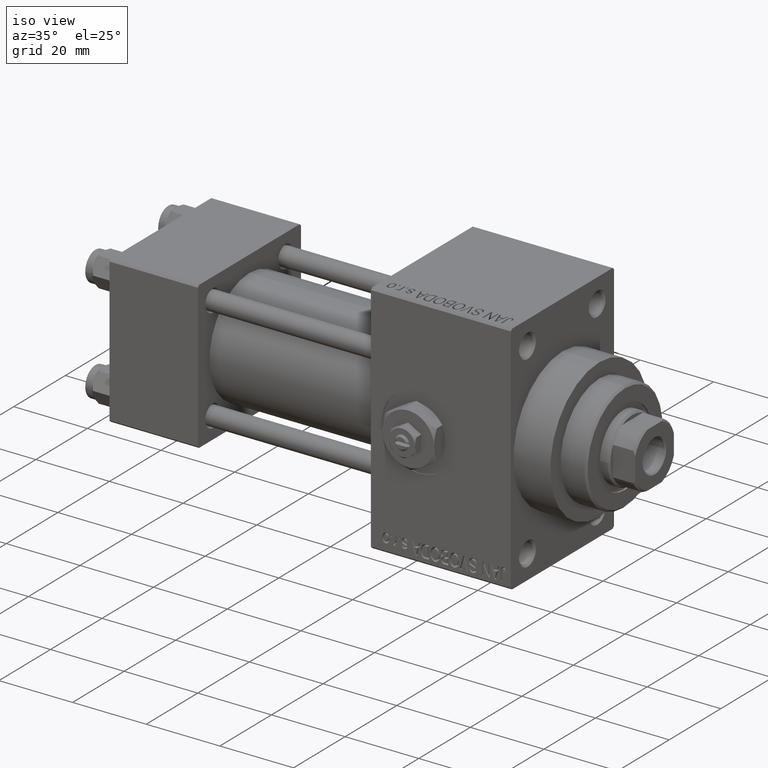
[diagram: clean part render]
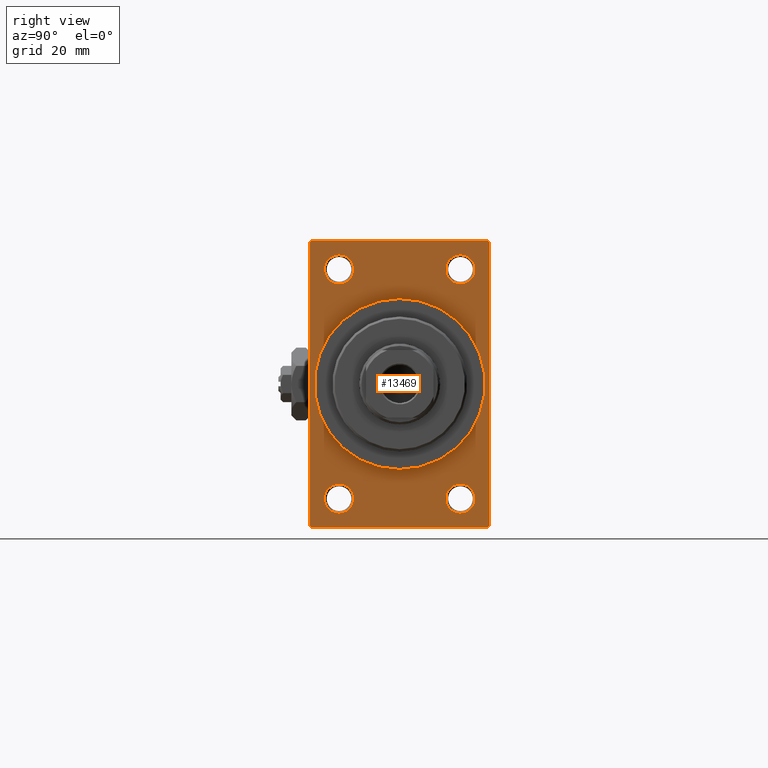
[diagram: tour spotlight — one face highlighted and labeled with its STEP entity id]
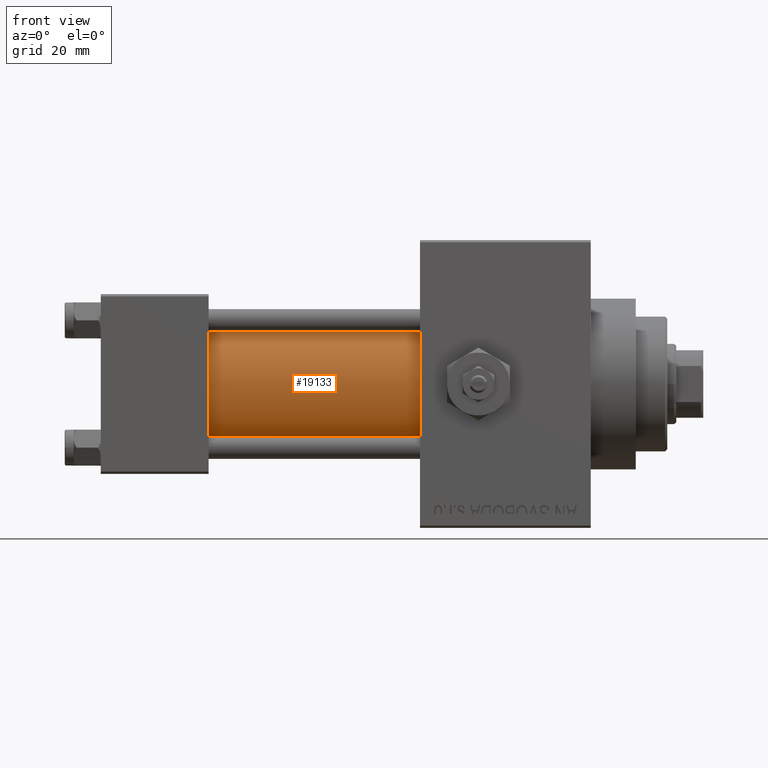
[diagram: tour spotlight — one face highlighted and labeled with its STEP entity id]
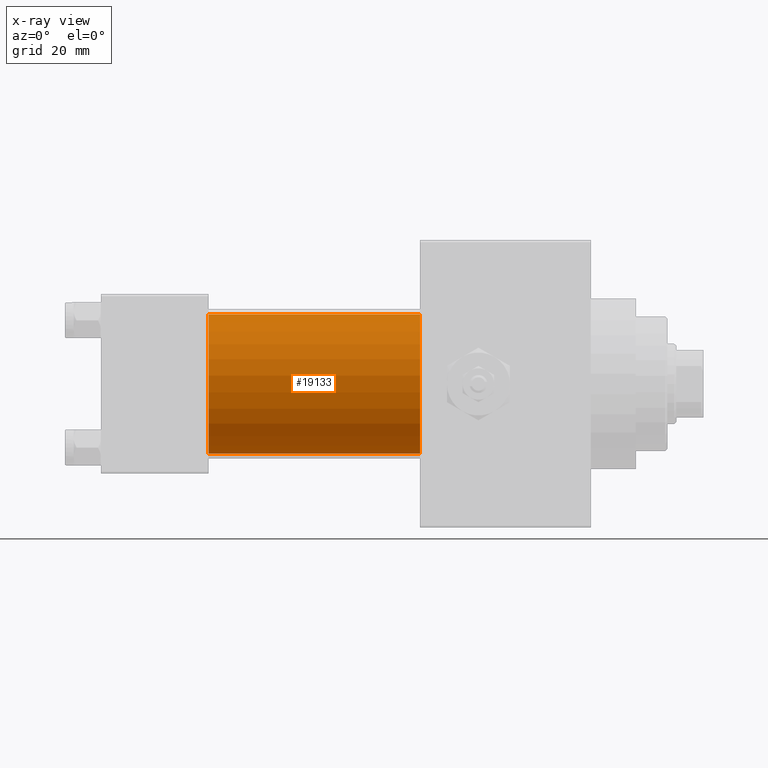
[diagram: x-ray of the same camera — body ghosted, this tour face saturated]
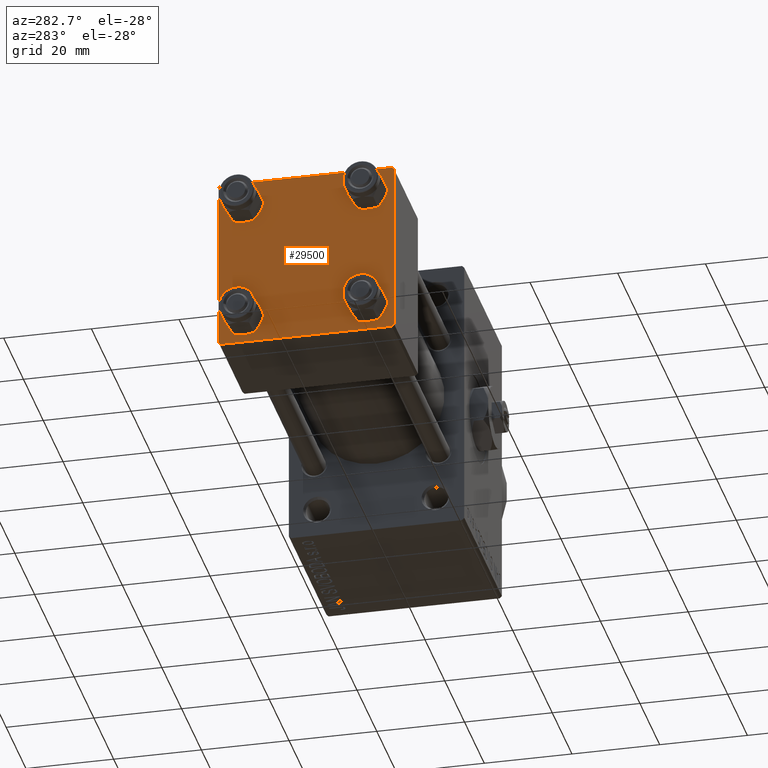
[diagram: tour spotlight — one face highlighted and labeled with its STEP entity id]
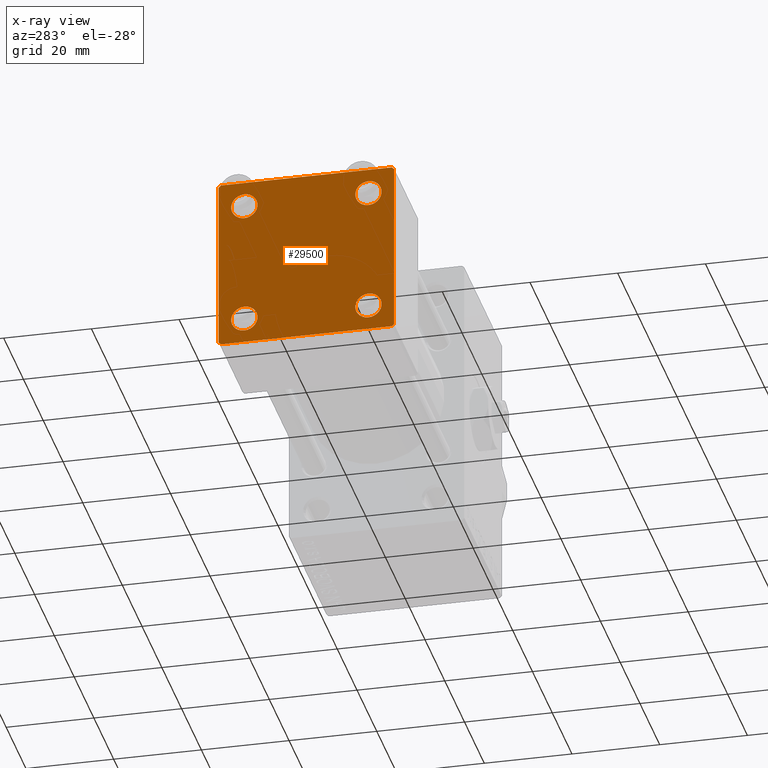
[diagram: x-ray of the same camera — body ghosted, this tour face saturated]
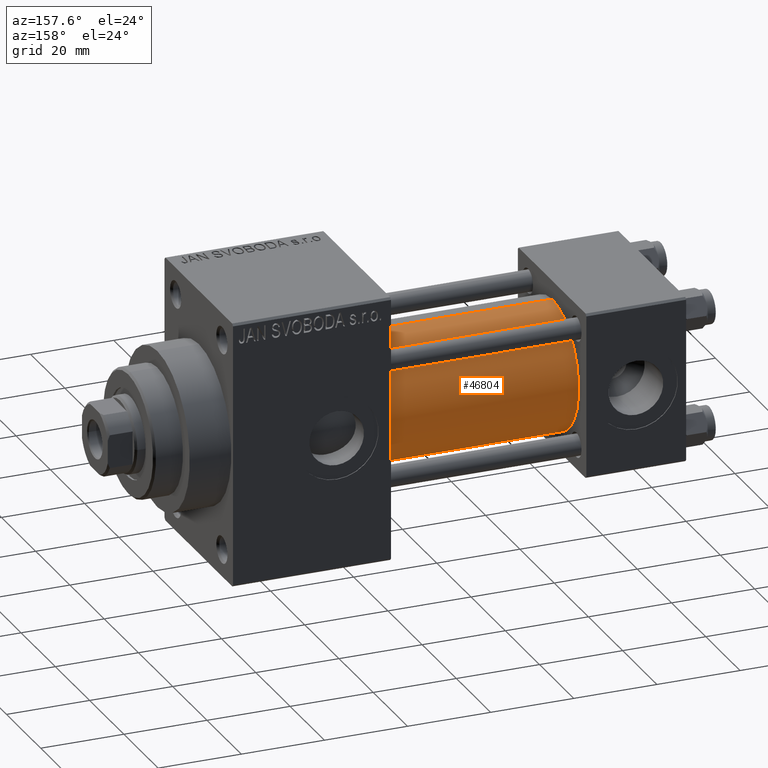
[diagram: tour spotlight — one face highlighted and labeled with its STEP entity id]
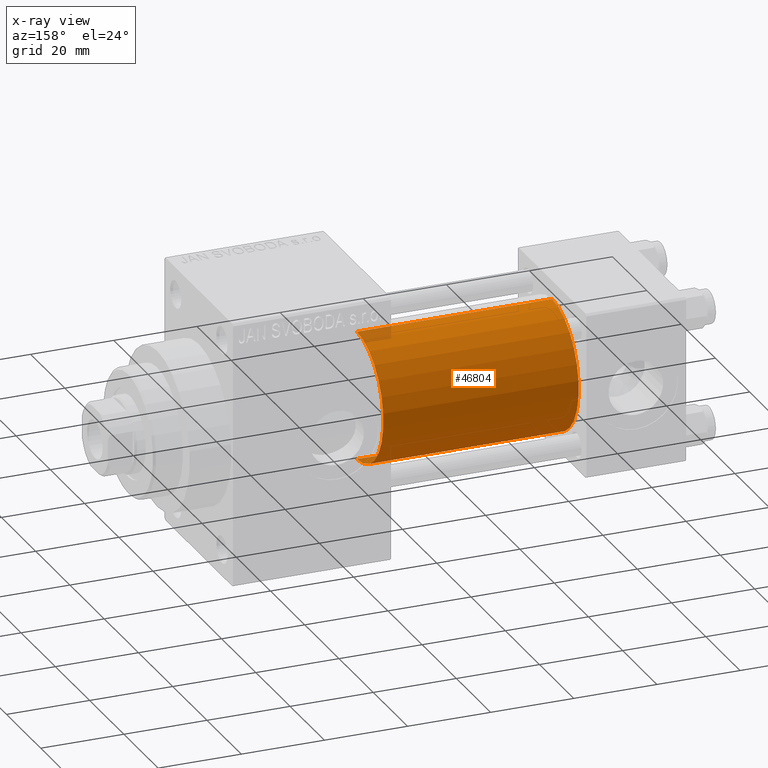
[diagram: x-ray of the same camera — body ghosted, this tour face saturated]
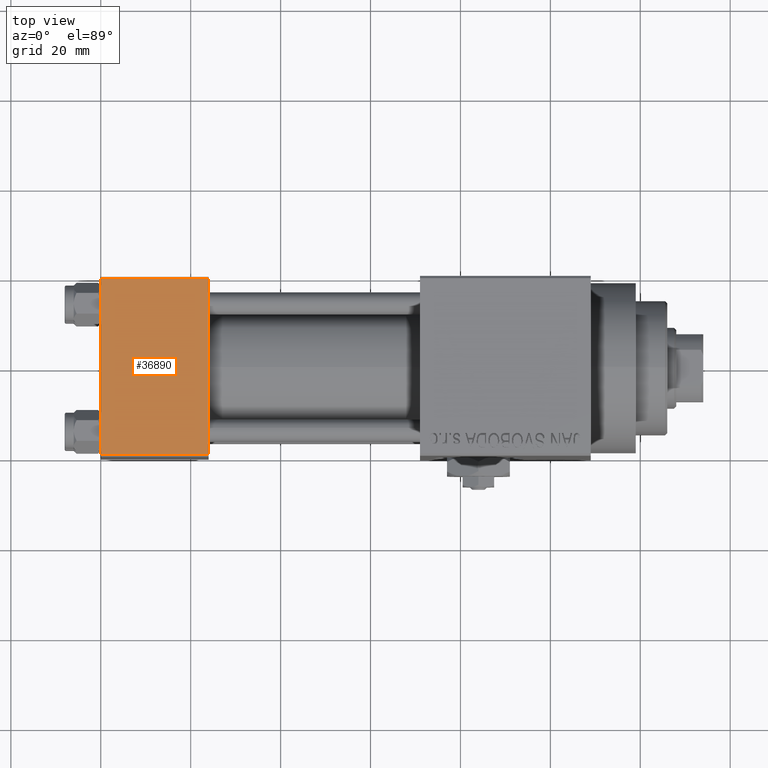
[diagram: tour spotlight — one face highlighted and labeled with its STEP entity id]
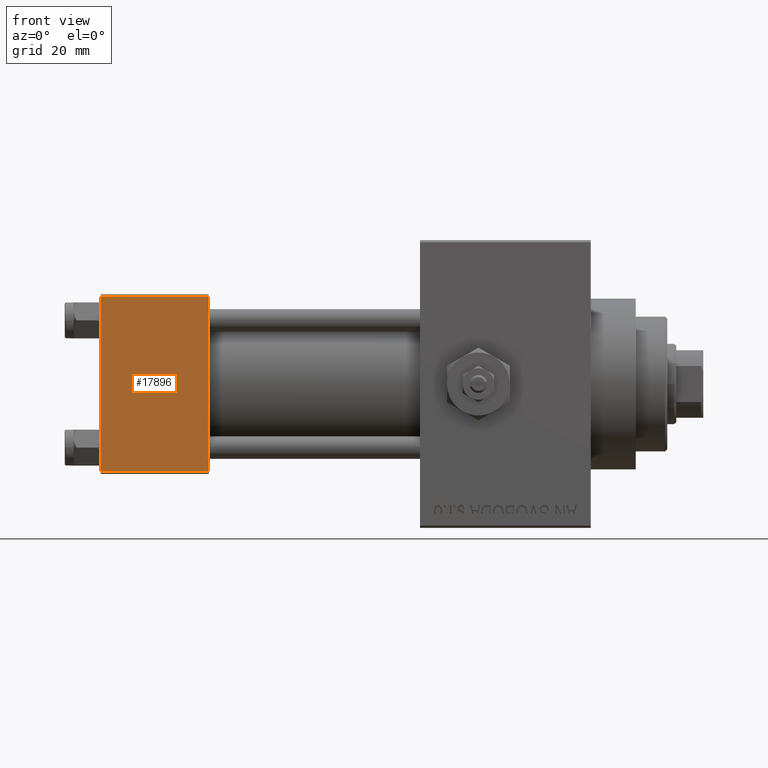
[diagram: tour spotlight — one face highlighted and labeled with its STEP entity id]
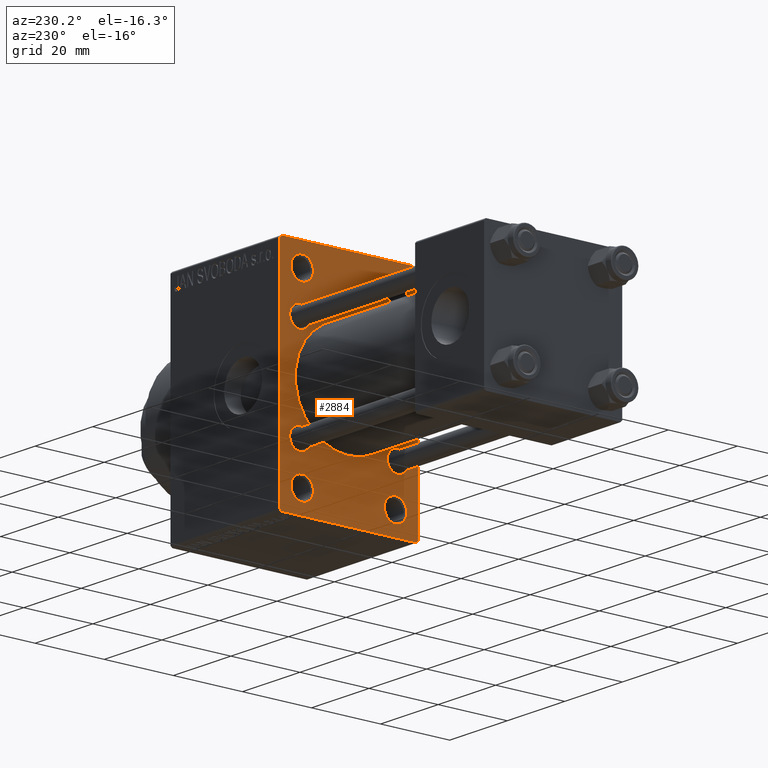
[diagram: tour spotlight — one face highlighted and labeled with its STEP entity id]
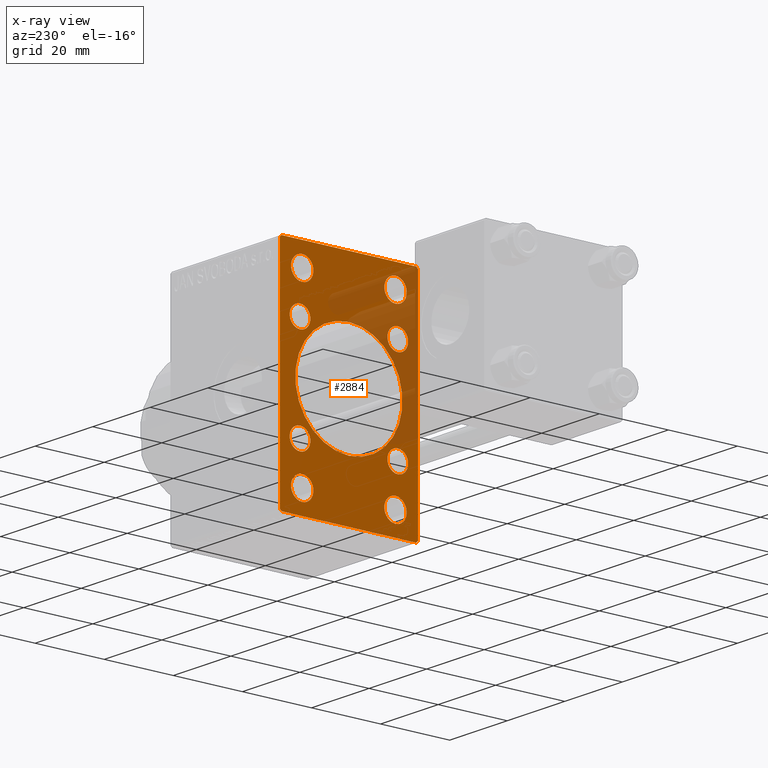
[diagram: x-ray of the same camera — body ghosted, this tour face saturated]
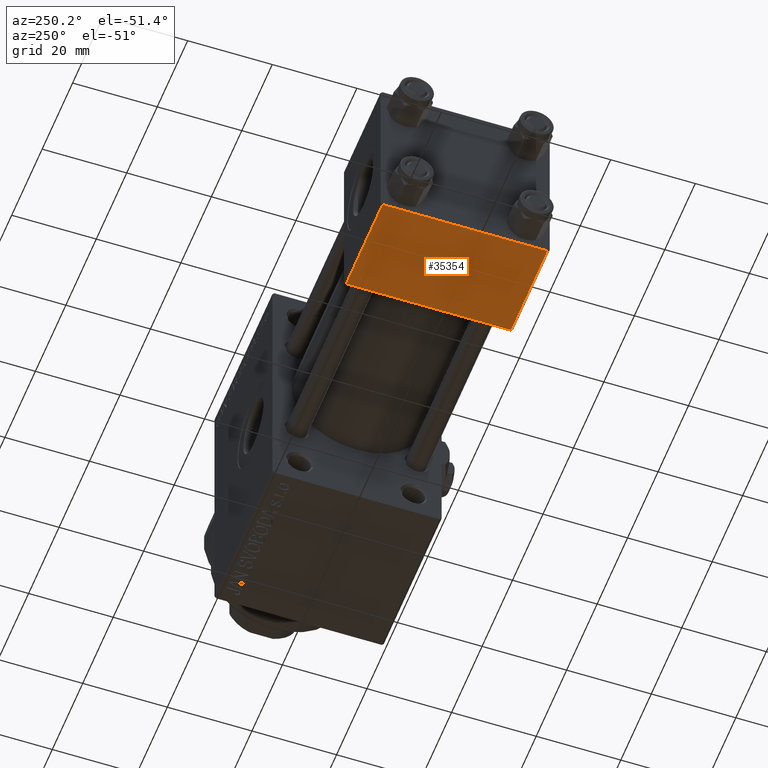
[diagram: tour spotlight — one face highlighted and labeled with its STEP entity id]
A machine part: a face-by-face anatomy tour. The part has 1147 B-rep faces; the first image is the clean iso view, then the 8 largest visible faces are spotlighted one at a time (largest first), each with its STEP entity span.

Face 1 — right view, entity #13469. In plain terms, the highlighted planar face has unit normal (-1, 0, 0).
Definition (entity closure, byte-faithful):
#80 = CARTESIAN_POINT ( 'NONE',  ( 109.0000000000000142, -13.50000000000000533, -28.74999999999999645 ) ) ;
#289 = ORIENTED_EDGE ( 'NONE', *, *, #42701, .T. ) ;
#597 = CIRCLE ( 'NONE', #43034, 3.250000000000002665 ) ;
#690 = VECTOR ( 'NONE', #17295, 1000.000000000000000 ) ;
#1184 = EDGE_CURVE ( 'NONE', #3322, #39910, #28812, .T. ) ;
#1387 = EDGE_LOOP ( 'NONE', ( #31497, #14321 ) ) ;
#1424 = CARTESIAN_POINT ( 'NONE',  ( 109.0000000000000142, 20.00000000000000000, 32.00000000000000000 ) ) ;
#1457 = ORIENTED_EDGE ( 'NONE', *, *, #6405, .T. ) ;
#2374 = VECTOR ( 'NONE', #26501, 1000.000000000000000 ) ;
#2558 = ORIENTED_EDGE ( 'NONE', *, *, #25199, .T. ) ;
#3287 = EDGE_CURVE ( 'NONE', #39910, #3322, #597, .T. ) ;
#3322 = VERTEX_POINT ( 'NONE', #44258 ) ;
#3344 = EDGE_CURVE ( 'NONE', #23978, #14136, #40322, .T. ) ;
#3849 = DIRECTION ( 'NONE',  ( -1.000000000000000000, -0.000000000000000000, -0.000000000000000000 ) ) ;
#3913 = DIRECTION ( 'NONE',  ( 0.000000000000000000, -0.7071067811865474617, 0.7071067811865474617 ) ) ;
#4007 = ORIENTED_EDGE ( 'NONE', *, *, #42714, .T. ) ;
#4622 = AXIS2_PLACEMENT_3D ( 'NONE', #19771, #26910, #34759 ) ;
#5451 = ORIENTED_EDGE ( 'NONE', *, *, #3344, .F. ) ;
#5732 = CARTESIAN_POINT ( 'NONE',  ( 109.0000000000000142, -13.50000000000000178, 25.50000000000000355 ) ) ;
#6153 = ORIENTED_EDGE ( 'NONE', *, *, #8077, .F. ) ;
#6405 = EDGE_CURVE ( 'NONE', #44268, #35281, #15718, .T. ) ;
#6503 = CARTESIAN_POINT ( 'NONE',  ( 109.0000000000000142, 20.00000000000000000, -31.49999999999998579 ) ) ;
#7319 = CARTESIAN_POINT ( 'NONE',  ( 109.0000000000000142, -19.49999999999998579, 31.99999999999999289 ) ) ;
#7529 = CARTESIAN_POINT ( 'NONE',  ( 109.0000000000000142, 13.49999999999999822, 25.50000000000000355 ) ) ;
#7645 = CARTESIAN_POINT ( 'NONE',  ( 109.0000000000000142, -19.49999999999998579, -32.00000000000000000 ) ) ;
#8077 = EDGE_CURVE ( 'NONE', #14819, #39569, #44549, .T. ) ;
#8122 = CARTESIAN_POINT ( 'NONE',  ( 109.0000000000000142, -13.50000000000000178, 22.25000000000000000 ) ) ;
#9175 = DIRECTION ( 'NONE',  ( 0.000000000000000000, 0.000000000000000000, 1.000000000000000000 ) ) ;
#9600 = DIRECTION ( 'NONE',  ( 0.000000000000000000, 0.000000000000000000, 1.000000000000000000 ) ) ;
#9852 = EDGE_CURVE ( 'NONE', #18030, #40856, #44733, .T. ) ;
#9865 = DIRECTION ( 'NONE',  ( -0.000000000000000000, 0.7071067811865474617, 0.7071067811865474617 ) ) ;
#10274 = CARTESIAN_POINT ( 'NONE',  ( 109.0000000000000142, 0.000000000000000000, 19.00000000000000000 ) ) ;
#10747 = EDGE_CURVE ( 'NONE', #39205, #41655, #48709, .T. ) ;
#11729 = CARTESIAN_POINT ( 'NONE',  ( 109.0000000000000142, 20.00000000000000000, 32.00000000000000000 ) ) ;
#11753 = EDGE_CURVE ( 'NONE', #19675, #46189, #37613, .T. ) ;
#11807 = EDGE_CURVE ( 'NONE', #19675, #20803, #38822, .T. ) ;
#12036 = FACE_OUTER_BOUND ( 'NONE', #35655, .T. ) ;
#12806 = EDGE_CURVE ( 'NONE', #46189, #44268, #41260, .T. ) ;
#13046 = CARTESIAN_POINT ( 'NONE',  ( 109.0000000000000142, 13.49999999999999822, -25.50000000000000000 ) ) ;
#13307 = AXIS2_PLACEMENT_3D ( 'NONE', #38955, #42668, #9175 ) ;
#13469 = ADVANCED_FACE ( 'NONE', ( #20146, #37200, #35149, #46246, #42060, #12036 ), #15480, .F. ) ;
#14025 = CIRCLE ( 'NONE', #25847, 3.250000000000002665 ) ;
#14136 = VERTEX_POINT ( 'NONE', #7645 ) ;
#14321 = ORIENTED_EDGE ( 'NONE', *, *, #9852, .T. ) ;
#14564 = DIRECTION ( 'NONE',  ( 0.000000000000000000, 0.000000000000000000, -1.000000000000000000 ) ) ;
#14707 = CIRCLE ( 'NONE', #25694, 3.250000000000002665 ) ;
#14819 = VERTEX_POINT ( 'NONE', #10274 ) ;
#15066 = ORIENTED_EDGE ( 'NONE', *, *, #46589, .F. ) ;
#15276 = AXIS2_PLACEMENT_3D ( 'NONE', #13046, #43328, #9600 ) ;
#15419 = LINE ( 'NONE', #30414, #690 ) ;
#15480 = PLANE ( 'NONE',  #22025 ) ;
#15718 = LINE ( 'NONE', #31197, #41591 ) ;
#15809 = ORIENTED_EDGE ( 'NONE', *, *, #31291, .T. ) ;
#16062 = LINE ( 'NONE', #25137, #48471 ) ;
#16497 = DIRECTION ( 'NONE',  ( -1.000000000000000000, -0.000000000000000000, -0.000000000000000000 ) ) ;
#16526 = VECTOR ( 'NONE', #24073, 1000.000000000000000 ) ;
#16733 = CARTESIAN_POINT ( 'NONE',  ( 109.0000000000000142, -13.50000000000000178, 25.50000000000000355 ) ) ;
#16999 = VERTEX_POINT ( 'NONE', #47650 ) ;
#17295 = DIRECTION ( 'NONE',  ( 0.000000000000000000, 0.000000000000000000, -1.000000000000000000 ) ) ;
#17509 = VECTOR ( 'NONE', #37386, 1000.000000000000000 ) ;
#18030 = VERTEX_POINT ( 'NONE', #45425 ) ;
#19651 = VECTOR ( 'NONE', #3913, 1000.000000000000114 ) ;
#19675 = VERTEX_POINT ( 'NONE', #27804 ) ;
#19771 = CARTESIAN_POINT ( 'NONE',  ( 109.0000000000000142, 0.000000000000000000, 0.000000000000000000 ) ) ;
#20146 = FACE_BOUND ( 'NONE', #22895, .T. ) ;
#20732 = DIRECTION ( 'NONE',  ( -1.000000000000000000, -0.000000000000000000, -0.000000000000000000 ) ) ;
#20803 = VERTEX_POINT ( 'NONE', #6503 ) ;
#20973 = AXIS2_PLACEMENT_3D ( 'NONE', #38954, #44597, #14564 ) ;
#21513 = DIRECTION ( 'NONE',  ( 0.000000000000000000, 0.000000000000000000, 1.000000000000000000 ) ) ;
#21560 = EDGE_CURVE ( 'NONE', #16999, #14136, #22390, .T. ) ;
#21619 = DIRECTION ( 'NONE',  ( -1.000000000000000000, -0.000000000000000000, -0.000000000000000000 ) ) ;
#22025 = AXIS2_PLACEMENT_3D ( 'NONE', #38357, #23365, #40899 ) ;
#22296 = AXIS2_PLACEMENT_3D ( 'NONE', #7529, #3849, #26746 ) ;
#22360 = CARTESIAN_POINT ( 'NONE',  ( 109.0000000000000142, -13.50000000000000533, -25.49999999999999645 ) ) ;
#22390 = LINE ( 'NONE', #37639, #17509 ) ;
#22895 = EDGE_LOOP ( 'NONE', ( #289, #38369 ) ) ;
#23365 = DIRECTION ( 'NONE',  ( -1.000000000000000000, 0.000000000000000000, -0.000000000000000000 ) ) ;
#23715 = EDGE_CURVE ( 'NONE', #40856, #18030, #45886, .T. ) ;
#23978 = VERTEX_POINT ( 'NONE', #39485 ) ;
#24073 = DIRECTION ( 'NONE',  ( 0.000000000000000000, 0.000000000000000000, -1.000000000000000000 ) ) ;
#24692 = CIRCLE ( 'NONE', #15276, 3.250000000000002665 ) ;
#25137 = CARTESIAN_POINT ( 'NONE',  ( 109.0000000000000142, 20.00000000000000000, -31.49999999999998579 ) ) ;
#25199 = EDGE_CURVE ( 'NONE', #41655, #39205, #24692, .T. ) ;
#25694 = AXIS2_PLACEMENT_3D ( 'NONE', #16733, #16497, #39113 ) ;
#25847 = AXIS2_PLACEMENT_3D ( 'NONE', #5732, #20732, #32042 ) ;
#25877 = ORIENTED_EDGE ( 'NONE', *, *, #12806, .T. ) ;
#26501 = DIRECTION ( 'NONE',  ( 0.000000000000000000, -1.000000000000000000, -1.734723475976807094E-16 ) ) ;
#26746 = DIRECTION ( 'NONE',  ( 0.000000000000000000, 0.000000000000000000, 1.000000000000000000 ) ) ;
#26804 = DIRECTION ( 'NONE',  ( -0.000000000000000000, -0.7071067811865474617, -0.7071067811865474617 ) ) ;
#26910 = DIRECTION ( 'NONE',  ( 1.000000000000000000, 0.000000000000000000, 0.000000000000000000 ) ) ;
#27328 = VECTOR ( 'NONE', #40564, 1000.000000000000000 ) ;
#27610 = VERTEX_POINT ( 'NONE', #45869 ) ;
#27804 = CARTESIAN_POINT ( 'NONE',  ( 109.0000000000000142, 20.00000000000000000, 31.49999999999998579 ) ) ;
#28812 = CIRCLE ( 'NONE', #31947, 3.250000000000002665 ) ;
#28886 = CARTESIAN_POINT ( 'NONE',  ( 109.0000000000000142, 13.49999999999999822, 25.50000000000000355 ) ) ;
#29999 = EDGE_LOOP ( 'NONE', ( #2558, #33194 ) ) ;
#30414 = CARTESIAN_POINT ( 'NONE',  ( 109.0000000000000142, -20.00000000000000000, 31.99999999999999289 ) ) ;
#30950 = CARTESIAN_POINT ( 'NONE',  ( 109.0000000000000142, 19.49999999999998579, 32.00000000000000000 ) ) ;
#31026 = ORIENTED_EDGE ( 'NONE', *, *, #11753, .T. ) ;
#31197 = CARTESIAN_POINT ( 'NONE',  ( 109.0000000000000142, -20.00000000000000000, 31.49999999999997868 ) ) ;
#31291 = EDGE_CURVE ( 'NONE', #23978, #20803, #16062, .T. ) ;
#31497 = ORIENTED_EDGE ( 'NONE', *, *, #23715, .T. ) ;
#31705 = EDGE_LOOP ( 'NONE', ( #45019, #42118 ) ) ;
#31947 = AXIS2_PLACEMENT_3D ( 'NONE', #44807, #37155, #40858 ) ;
#32042 = DIRECTION ( 'NONE',  ( 0.000000000000000000, 0.000000000000000000, 1.000000000000000000 ) ) ;
#32267 = CARTESIAN_POINT ( 'NONE',  ( 109.0000000000000142, 2.326828918379970970E-15, -19.00000000000000000 ) ) ;
#33194 = ORIENTED_EDGE ( 'NONE', *, *, #10747, .T. ) ;
#34759 = DIRECTION ( 'NONE',  ( 0.000000000000000000, 0.000000000000000000, -1.000000000000000000 ) ) ;
#35122 = ORIENTED_EDGE ( 'NONE', *, *, #11807, .F. ) ;
#35149 = FACE_BOUND ( 'NONE', #29999, .T. ) ;
#35281 = VERTEX_POINT ( 'NONE', #43822 ) ;
#35655 = EDGE_LOOP ( 'NONE', ( #4007, #38973, #5451, #15809, #35122, #31026, #25877, #1457 ) ) ;
#36299 = VERTEX_POINT ( 'NONE', #8122 ) ;
#36595 = EDGE_LOOP ( 'NONE', ( #6153, #15066 ) ) ;
#37155 = DIRECTION ( 'NONE',  ( -1.000000000000000000, -0.000000000000000000, -0.000000000000000000 ) ) ;
#37200 = FACE_BOUND ( 'NONE', #31705, .T. ) ;
#37386 = DIRECTION ( 'NONE',  ( 0.000000000000000000, 0.7071067811865426878, -0.7071067811865524577 ) ) ;
#37607 = CARTESIAN_POINT ( 'NONE',  ( 109.0000000000000142, 19.49999999999998579, 32.00000000000000000 ) ) ;
#37613 = LINE ( 'NONE', #30950, #19651 ) ;
#37639 = CARTESIAN_POINT ( 'NONE',  ( 109.0000000000000142, -19.49999999999998579, -32.00000000000000000 ) ) ;
#38357 = CARTESIAN_POINT ( 'NONE',  ( 109.0000000000000142, 0.000000000000000000, 0.000000000000000000 ) ) ;
#38369 = ORIENTED_EDGE ( 'NONE', *, *, #38965, .T. ) ;
#38822 = LINE ( 'NONE', #1424, #16526 ) ;
#38954 = CARTESIAN_POINT ( 'NONE',  ( 109.0000000000000142, 0.000000000000000000, 0.000000000000000000 ) ) ;
#38955 = CARTESIAN_POINT ( 'NONE',  ( 109.0000000000000142, 13.49999999999999822, -25.50000000000000000 ) ) ;
#38965 = EDGE_CURVE ( 'NONE', #27610, #36299, #14707, .T. ) ;
#38973 = ORIENTED_EDGE ( 'NONE', *, *, #21560, .T. ) ;
#39113 = DIRECTION ( 'NONE',  ( 0.000000000000000000, 0.000000000000000000, 1.000000000000000000 ) ) ;
#39205 = VERTEX_POINT ( 'NONE', #43654 ) ;
#39485 = CARTESIAN_POINT ( 'NONE',  ( 109.0000000000000142, 19.49999999999998579, -32.00000000000000000 ) ) ;
#39569 = VERTEX_POINT ( 'NONE', #32267 ) ;
#39910 = VERTEX_POINT ( 'NONE', #80 ) ;
#40322 = LINE ( 'NONE', #45005, #27328 ) ;
#40564 = DIRECTION ( 'NONE',  ( 0.000000000000000000, -1.000000000000000000, 0.000000000000000000 ) ) ;
#40856 = VERTEX_POINT ( 'NONE', #41626 ) ;
#40858 = DIRECTION ( 'NONE',  ( 0.000000000000000000, 0.000000000000000000, 1.000000000000000000 ) ) ;
#40899 = DIRECTION ( 'NONE',  ( -0.000000000000000000, 0.000000000000000000, 1.000000000000000000 ) ) ;
#41260 = LINE ( 'NONE', #11729, #2374 ) ;
#41591 = VECTOR ( 'NONE', #26804, 1000.000000000000114 ) ;
#41626 = CARTESIAN_POINT ( 'NONE',  ( 109.0000000000000142, 13.49999999999999822, 22.25000000000004263 ) ) ;
#41655 = VERTEX_POINT ( 'NONE', #45949 ) ;
#42060 = FACE_BOUND ( 'NONE', #36595, .T. ) ;
#42118 = ORIENTED_EDGE ( 'NONE', *, *, #1184, .T. ) ;
#42668 = DIRECTION ( 'NONE',  ( -1.000000000000000000, -0.000000000000000000, -0.000000000000000000 ) ) ;
#42701 = EDGE_CURVE ( 'NONE', #36299, #27610, #14025, .T. ) ;
#42714 = EDGE_CURVE ( 'NONE', #35281, #16999, #15419, .T. ) ;
#43034 = AXIS2_PLACEMENT_3D ( 'NONE', #22360, #21619, #48705 ) ;
#43328 = DIRECTION ( 'NONE',  ( -1.000000000000000000, -0.000000000000000000, -0.000000000000000000 ) ) ;
#43654 = CARTESIAN_POINT ( 'NONE',  ( 109.0000000000000142, 13.49999999999999822, -22.24999999999999645 ) ) ;
#43822 = CARTESIAN_POINT ( 'NONE',  ( 109.0000000000000142, -20.00000000000000000, 31.49999999999997868 ) ) ;
#43883 = CIRCLE ( 'NONE', #4622, 19.00000000000000000 ) ;
#43912 = DIRECTION ( 'NONE',  ( -1.000000000000000000, -0.000000000000000000, -0.000000000000000000 ) ) ;
#44258 = CARTESIAN_POINT ( 'NONE',  ( 109.0000000000000142, -13.50000000000000533, -22.24999999999999289 ) ) ;
#44268 = VERTEX_POINT ( 'NONE', #7319 ) ;
#44549 = CIRCLE ( 'NONE', #20973, 19.00000000000000000 ) ;
#44597 = DIRECTION ( 'NONE',  ( 1.000000000000000000, 0.000000000000000000, 0.000000000000000000 ) ) ;
#44733 = CIRCLE ( 'NONE', #46322, 3.249999999999961364 ) ;
#44807 = CARTESIAN_POINT ( 'NONE',  ( 109.0000000000000142, -13.50000000000000533, -25.49999999999999645 ) ) ;
#45005 = CARTESIAN_POINT ( 'NONE',  ( 109.0000000000000142, 20.00000000000000000, -32.00000000000000000 ) ) ;
#45019 = ORIENTED_EDGE ( 'NONE', *, *, #3287, .T. ) ;
#45425 = CARTESIAN_POINT ( 'NONE',  ( 109.0000000000000142, 13.49999999999999822, 28.74999999999996803 ) ) ;
#45869 = CARTESIAN_POINT ( 'NONE',  ( 109.0000000000000142, -13.50000000000000178, 28.75000000000000355 ) ) ;
#45886 = CIRCLE ( 'NONE', #22296, 3.249999999999961364 ) ;
#45949 = CARTESIAN_POINT ( 'NONE',  ( 109.0000000000000142, 13.49999999999999822, -28.75000000000000000 ) ) ;
#46189 = VERTEX_POINT ( 'NONE', #37607 ) ;
#46246 = FACE_BOUND ( 'NONE', #1387, .T. ) ;
#46322 = AXIS2_PLACEMENT_3D ( 'NONE', #28886, #43912, #21513 ) ;
#46589 = EDGE_CURVE ( 'NONE', #39569, #14819, #43883, .T. ) ;
#47650 = CARTESIAN_POINT ( 'NONE',  ( 109.0000000000000142, -20.00000000000000000, -31.49999999999997868 ) ) ;
#48471 = VECTOR ( 'NONE', #9865, 1000.000000000000114 ) ;
#48705 = DIRECTION ( 'NONE',  ( 0.000000000000000000, 0.000000000000000000, 1.000000000000000000 ) ) ;
#48709 = CIRCLE ( 'NONE', #13307, 3.250000000000002665 ) ;

Face 2 — front view, entity #19133. An x-ray twin of the same camera follows (body ghosted, this face saturated) — the face is partly hidden behind the body. In plain terms, the highlighted cylindrical surface (partial cylindrical patch) has radius 15.5 mm, axis along (-1, -0, -0).
Definition (entity closure, byte-faithful):
#320 = CARTESIAN_POINT ( 'NONE',  ( 71.00000000000001421, -7.038826752868131828E-16, -15.50000000000000000 ) ) ;
#920 = AXIS2_PLACEMENT_3D ( 'NONE', #6532, #25252, #17144 ) ;
#1011 = AXIS2_PLACEMENT_3D ( 'NONE', #40686, #21990, #36740 ) ;
#1690 = ORIENTED_EDGE ( 'NONE', *, *, #23704, .F. ) ;
#3377 = EDGE_LOOP ( 'NONE', ( #20206, #1690, #39677, #43020 ) ) ;
#3597 = CARTESIAN_POINT ( 'NONE',  ( 71.00000000000001421, -2.602085213965210642E-15, 0.000000000000000000 ) ) ;
#5910 = EDGE_CURVE ( 'NONE', #10640, #33602, #44782, .T. ) ;
#6505 = CARTESIAN_POINT ( 'NONE',  ( 71.00000000000001421, -2.602085213965210642E-15, 15.50000000000000000 ) ) ;
#6532 = CARTESIAN_POINT ( 'NONE',  ( 24.00000000000000000, -2.602085213965210642E-15, 0.000000000000000000 ) ) ;
#7219 = CYLINDRICAL_SURFACE ( 'NONE', #1011, 15.50000000000000000 ) ;
#10640 = VERTEX_POINT ( 'NONE', #6505 ) ;
#13487 = CIRCLE ( 'NONE', #920, 15.50000000000000000 ) ;
#15940 = EDGE_CURVE ( 'NONE', #33602, #39516, #13487, .T. ) ;
#17144 = DIRECTION ( 'NONE',  ( 0.000000000000000000, 0.000000000000000000, 1.000000000000000000 ) ) ;
#17465 = CARTESIAN_POINT ( 'NONE',  ( 71.00000000000001421, -2.602085213965210642E-15, 15.50000000000000000 ) ) ;
#18309 = CARTESIAN_POINT ( 'NONE',  ( 71.00000000000001421, -7.038826752868131828E-16, -15.50000000000000000 ) ) ;
#18607 = DIRECTION ( 'NONE',  ( 1.000000000000000000, 0.000000000000000000, 0.000000000000000000 ) ) ;
#19133 = ADVANCED_FACE ( 'NONE', ( #39955 ), #7219, .T. ) ;
#20206 = ORIENTED_EDGE ( 'NONE', *, *, #27532, .F. ) ;
#21133 = VECTOR ( 'NONE', #22132, 1000.000000000000000 ) ;
#21512 = AXIS2_PLACEMENT_3D ( 'NONE', #3597, #18607, #23047 ) ;
#21990 = DIRECTION ( 'NONE',  ( -1.000000000000000000, -0.000000000000000000, -0.000000000000000000 ) ) ;
#22132 = DIRECTION ( 'NONE',  ( -1.000000000000000000, -0.000000000000000000, -0.000000000000000000 ) ) ;
#22978 = CARTESIAN_POINT ( 'NONE',  ( 24.00000000000000000, -7.038826752868131828E-16, -15.50000000000000000 ) ) ;
#23047 = DIRECTION ( 'NONE',  ( 0.000000000000000000, 0.000000000000000000, -1.000000000000000000 ) ) ;
#23704 = EDGE_CURVE ( 'NONE', #10640, #31017, #39536, .T. ) ;
#25252 = DIRECTION ( 'NONE',  ( 1.000000000000000000, 0.000000000000000000, 0.000000000000000000 ) ) ;
#27532 = EDGE_CURVE ( 'NONE', #31017, #39516, #40947, .T. ) ;
#27941 = CARTESIAN_POINT ( 'NONE',  ( 24.00000000000000000, -2.602085213965210642E-15, 15.50000000000000000 ) ) ;
#29129 = DIRECTION ( 'NONE',  ( -1.000000000000000000, -0.000000000000000000, -0.000000000000000000 ) ) ;
#31017 = VERTEX_POINT ( 'NONE', #320 ) ;
#33602 = VERTEX_POINT ( 'NONE', #27941 ) ;
#35774 = VECTOR ( 'NONE', #29129, 1000.000000000000000 ) ;
#36740 = DIRECTION ( 'NONE',  ( 0.000000000000000000, 0.000000000000000000, 1.000000000000000000 ) ) ;
#39516 = VERTEX_POINT ( 'NONE', #22978 ) ;
#39536 = CIRCLE ( 'NONE', #21512, 15.50000000000000000 ) ;
#39677 = ORIENTED_EDGE ( 'NONE', *, *, #5910, .T. ) ;
#39955 = FACE_OUTER_BOUND ( 'NONE', #3377, .T. ) ;
#40686 = CARTESIAN_POINT ( 'NONE',  ( 71.00000000000001421, -2.602085213965210642E-15, 0.000000000000000000 ) ) ;
#40947 = LINE ( 'NONE', #18309, #35774 ) ;
#43020 = ORIENTED_EDGE ( 'NONE', *, *, #15940, .T. ) ;
#44782 = LINE ( 'NONE', #17465, #21133 ) ;

Face 3 — auxiliary view, entity #29500. An x-ray twin of the same camera follows (body ghosted, this face saturated) — the face is partly hidden behind the body. In plain terms, the highlighted planar face has unit normal (-1, 0, 0).
Definition (entity closure, byte-faithful):
#445 = DIRECTION ( 'NONE',  ( 0.000000000000000000, -1.000000000000000000, -2.602085213965210149E-16 ) ) ;
#677 = DIRECTION ( 'NONE',  ( -1.000000000000000000, 0.000000000000000000, -0.000000000000000000 ) ) ;
#775 = VERTEX_POINT ( 'NONE', #43400 ) ;
#1055 = LINE ( 'NONE', #34281, #8598 ) ;
#1091 = VERTEX_POINT ( 'NONE', #39636 ) ;
#1215 = CARTESIAN_POINT ( 'NONE',  ( 0.000000000000000000, 20.00000000000000000, -20.00000000000000711 ) ) ;
#1379 = DIRECTION ( 'NONE',  ( 1.000000000000000000, 0.000000000000000000, 0.000000000000000000 ) ) ;
#1825 = CARTESIAN_POINT ( 'NONE',  ( 0.000000000000000000, -14.14999999999999503, -11.15000000000000036 ) ) ;
#1865 = CARTESIAN_POINT ( 'NONE',  ( 0.000000000000000000, 14.14999999999999858, 14.15000000000000036 ) ) ;
#1928 = ORIENTED_EDGE ( 'NONE', *, *, #21401, .T. ) ;
#1943 = EDGE_CURVE ( 'NONE', #1984, #1091, #10896, .T. ) ;
#1984 = VERTEX_POINT ( 'NONE', #15330 ) ;
#2431 = DIRECTION ( 'NONE',  ( -0.000000000000000000, 0.7071067811865500152, 0.7071067811865451302 ) ) ;
#3139 = VERTEX_POINT ( 'NONE', #4203 ) ;
#4203 = CARTESIAN_POINT ( 'NONE',  ( 0.000000000000000000, -14.14999999999999503, -17.15000000000000924 ) ) ;
#4613 = FACE_BOUND ( 'NONE', #16525, .T. ) ;
#5294 = AXIS2_PLACEMENT_3D ( 'NONE', #25209, #29119, #44143 ) ;
#5361 = CARTESIAN_POINT ( 'NONE',  ( 0.000000000000000000, -19.75000000000020961, -19.74999999999979394 ) ) ;
#5428 = CARTESIAN_POINT ( 'NONE',  ( 0.000000000000000000, -19.49999999999999289, 19.99999999999998934 ) ) ;
#5805 = VERTEX_POINT ( 'NONE', #5428 ) ;
#6148 = DIRECTION ( 'NONE',  ( 0.000000000000000000, 0.000000000000000000, 1.000000000000000000 ) ) ;
#8598 = VECTOR ( 'NONE', #12374, 1000.000000000000000 ) ;
#8647 = DIRECTION ( 'NONE',  ( 0.000000000000000000, 0.000000000000000000, 1.000000000000000000 ) ) ;
#8686 = ORIENTED_EDGE ( 'NONE', *, *, #43027, .T. ) ;
#8945 = CIRCLE ( 'NONE', #29366, 2.999999999999983569 ) ;
#9407 = EDGE_CURVE ( 'NONE', #11234, #775, #11668, .T. ) ;
#9535 = DIRECTION ( 'NONE',  ( 0.000000000000000000, -0.7071067811865401342, 0.7071067811865549002 ) ) ;
#10896 = LINE ( 'NONE', #25662, #18650 ) ;
#10899 = CIRCLE ( 'NONE', #14022, 2.999999999999983569 ) ;
#11234 = VERTEX_POINT ( 'NONE', #16276 ) ;
#11263 = FACE_BOUND ( 'NONE', #18481, .T. ) ;
#11315 = EDGE_CURVE ( 'NONE', #44531, #5805, #34159, .T. ) ;
#11668 = CIRCLE ( 'NONE', #40745, 2.999999999999983569 ) ;
#11865 = EDGE_CURVE ( 'NONE', #28388, #45722, #39062, .T. ) ;
#12164 = ORIENTED_EDGE ( 'NONE', *, *, #44749, .T. ) ;
#12374 = DIRECTION ( 'NONE',  ( -0.000000000000000000, -0.7071067811865524577, -0.7071067811865426878 ) ) ;
#12473 = VERTEX_POINT ( 'NONE', #45992 ) ;
#12583 = VECTOR ( 'NONE', #9535, 1000.000000000000000 ) ;
#12891 = DIRECTION ( 'NONE',  ( 0.000000000000000000, 0.7071067811865425767, -0.7071067811865525687 ) ) ;
#13427 = ORIENTED_EDGE ( 'NONE', *, *, #11865, .T. ) ;
#14022 = AXIS2_PLACEMENT_3D ( 'NONE', #34579, #15888, #37541 ) ;
#14767 = VERTEX_POINT ( 'NONE', #16948 ) ;
#15156 = CARTESIAN_POINT ( 'NONE',  ( 0.000000000000000000, -20.00000000000000000, -19.49999999999999645 ) ) ;
#15215 = CIRCLE ( 'NONE', #41944, 3.000000000000004441 ) ;
#15330 = CARTESIAN_POINT ( 'NONE',  ( 0.000000000000000000, 20.00000000000000000, 19.49999999999999289 ) ) ;
#15437 = LINE ( 'NONE', #30432, #24957 ) ;
#15888 = DIRECTION ( 'NONE',  ( 1.000000000000000000, 0.000000000000000000, 0.000000000000000000 ) ) ;
#16276 = CARTESIAN_POINT ( 'NONE',  ( 0.000000000000000000, 14.14999999999999858, -17.14999999999998437 ) ) ;
#16384 = VERTEX_POINT ( 'NONE', #1825 ) ;
#16525 = EDGE_LOOP ( 'NONE', ( #8686, #43126 ) ) ;
#16598 = LINE ( 'NONE', #46623, #34433 ) ;
#16948 = CARTESIAN_POINT ( 'NONE',  ( 0.000000000000000000, 19.50000000000000711, -20.00000000000000711 ) ) ;
#17517 = EDGE_CURVE ( 'NONE', #14767, #28388, #38132, .T. ) ;
#17648 = CARTESIAN_POINT ( 'NONE',  ( 0.000000000000000000, -19.50000000000000711, -20.00000000000000000 ) ) ;
#18481 = EDGE_LOOP ( 'NONE', ( #24767, #1928 ) ) ;
#18650 = VECTOR ( 'NONE', #45356, 1000.000000000000000 ) ;
#18746 = CIRCLE ( 'NONE', #19522, 2.999999999999983569 ) ;
#19059 = ORIENTED_EDGE ( 'NONE', *, *, #45730, .T. ) ;
#19522 = AXIS2_PLACEMENT_3D ( 'NONE', #1865, #1379, #42489 ) ;
#19567 = AXIS2_PLACEMENT_3D ( 'NONE', #23910, #27347, #8647 ) ;
#19658 = CARTESIAN_POINT ( 'NONE',  ( 0.000000000000000000, 14.14999999999999858, -14.15000000000000036 ) ) ;
#19794 = VERTEX_POINT ( 'NONE', #47723 ) ;
#19809 = EDGE_CURVE ( 'NONE', #31987, #5805, #39835, .T. ) ;
#20100 = EDGE_CURVE ( 'NONE', #16384, #3139, #15215, .T. ) ;
#20221 = CIRCLE ( 'NONE', #5294, 3.000000000000004441 ) ;
#20780 = CARTESIAN_POINT ( 'NONE',  ( 0.000000000000000000, -14.14999999999999503, -14.15000000000000391 ) ) ;
#21384 = CARTESIAN_POINT ( 'NONE',  ( -0.000000000000000000, -19.74999999999992539, 19.75000000000006395 ) ) ;
#21401 = EDGE_CURVE ( 'NONE', #19794, #27000, #34103, .T. ) ;
#22591 = FACE_BOUND ( 'NONE', #37652, .T. ) ;
#22677 = ORIENTED_EDGE ( 'NONE', *, *, #20100, .T. ) ;
#23084 = FACE_BOUND ( 'NONE', #40604, .T. ) ;
#23601 = DIRECTION ( 'NONE',  ( 1.000000000000000000, 0.000000000000000000, 0.000000000000000000 ) ) ;
#23714 = DIRECTION ( 'NONE',  ( 1.000000000000000000, 0.000000000000000000, 0.000000000000000000 ) ) ;
#23910 = CARTESIAN_POINT ( 'NONE',  ( 0.000000000000000000, -14.14999999999999503, 14.15000000000000391 ) ) ;
#24148 = EDGE_CURVE ( 'NONE', #33001, #12473, #8945, .T. ) ;
#24767 = ORIENTED_EDGE ( 'NONE', *, *, #41711, .T. ) ;
#24957 = VECTOR ( 'NONE', #26776, 1000.000000000000000 ) ;
#25209 = CARTESIAN_POINT ( 'NONE',  ( 0.000000000000000000, -14.14999999999999503, -14.15000000000000391 ) ) ;
#25662 = CARTESIAN_POINT ( 'NONE',  ( 0.000000000000000000, 20.00000000000000000, 20.00000000000000000 ) ) ;
#26290 = FACE_OUTER_BOUND ( 'NONE', #47995, .T. ) ;
#26776 = DIRECTION ( 'NONE',  ( 0.000000000000000000, 8.673617379884036705E-17, -1.000000000000000000 ) ) ;
#27000 = VERTEX_POINT ( 'NONE', #45804 ) ;
#27347 = DIRECTION ( 'NONE',  ( 1.000000000000000000, 0.000000000000000000, 0.000000000000000000 ) ) ;
#27697 = DIRECTION ( 'NONE',  ( 0.000000000000000000, 0.000000000000000000, 1.000000000000000000 ) ) ;
#27836 = ORIENTED_EDGE ( 'NONE', *, *, #11315, .F. ) ;
#28078 = CIRCLE ( 'NONE', #19567, 2.999999999999983569 ) ;
#28388 = VERTEX_POINT ( 'NONE', #17648 ) ;
#29119 = DIRECTION ( 'NONE',  ( 1.000000000000000000, 0.000000000000000000, 0.000000000000000000 ) ) ;
#29151 = CARTESIAN_POINT ( 'NONE',  ( 0.000000000000000000, 19.50000000000000000, 20.00000000000000000 ) ) ;
#29366 = AXIS2_PLACEMENT_3D ( 'NONE', #31557, #23714, #45863 ) ;
#29475 = CARTESIAN_POINT ( 'NONE',  ( 0.000000000000000000, 20.00000000000000000, 20.00000000000000000 ) ) ;
#29500 = ADVANCED_FACE ( 'NONE', ( #4613, #22591, #23084, #11263, #26290 ), #34380, .T. ) ;
#30135 = ORIENTED_EDGE ( 'NONE', *, *, #47579, .T. ) ;
#30432 = CARTESIAN_POINT ( 'NONE',  ( 0.000000000000000000, -20.00000000000000355, 19.99999999999998934 ) ) ;
#30940 = VECTOR ( 'NONE', #2431, 1000.000000000000114 ) ;
#31557 = CARTESIAN_POINT ( 'NONE',  ( 0.000000000000000000, -14.14999999999999503, 14.15000000000000391 ) ) ;
#31987 = VERTEX_POINT ( 'NONE', #42581 ) ;
#31988 = CARTESIAN_POINT ( 'NONE',  ( 0.000000000000000000, 14.14999999999999858, 14.15000000000000036 ) ) ;
#33001 = VERTEX_POINT ( 'NONE', #37616 ) ;
#34103 = CIRCLE ( 'NONE', #40273, 2.999999999999983569 ) ;
#34159 = LINE ( 'NONE', #29475, #47126 ) ;
#34281 = CARTESIAN_POINT ( 'NONE',  ( -0.000000000000000000, 19.74999999999986855, -19.75000000000014211 ) ) ;
#34380 = PLANE ( 'NONE',  #37422 ) ;
#34433 = VECTOR ( 'NONE', #12891, 999.9999999999998863 ) ;
#34579 = CARTESIAN_POINT ( 'NONE',  ( 0.000000000000000000, 14.14999999999999858, -14.15000000000000036 ) ) ;
#34653 = DIRECTION ( 'NONE',  ( 0.000000000000000000, 0.000000000000000000, 1.000000000000000000 ) ) ;
#36172 = DIRECTION ( 'NONE',  ( 1.000000000000000000, 0.000000000000000000, 0.000000000000000000 ) ) ;
#37422 = AXIS2_PLACEMENT_3D ( 'NONE', #38073, #677, #45480 ) ;
#37541 = DIRECTION ( 'NONE',  ( 0.000000000000000000, 0.000000000000000000, 1.000000000000000000 ) ) ;
#37616 = CARTESIAN_POINT ( 'NONE',  ( 0.000000000000000000, -14.14999999999999503, 11.15000000000002345 ) ) ;
#37652 = EDGE_LOOP ( 'NONE', ( #22677, #46797 ) ) ;
#37995 = ORIENTED_EDGE ( 'NONE', *, *, #9407, .T. ) ;
#38073 = CARTESIAN_POINT ( 'NONE',  ( 0.000000000000000000, 0.000000000000000000, 0.000000000000000000 ) ) ;
#38132 = LINE ( 'NONE', #1215, #44183 ) ;
#39062 = LINE ( 'NONE', #5361, #12583 ) ;
#39636 = CARTESIAN_POINT ( 'NONE',  ( 0.000000000000000000, 20.00000000000000000, -19.50000000000002132 ) ) ;
#39835 = LINE ( 'NONE', #21384, #30940 ) ;
#39887 = EDGE_CURVE ( 'NONE', #3139, #16384, #20221, .T. ) ;
#40273 = AXIS2_PLACEMENT_3D ( 'NONE', #31988, #36172, #6148 ) ;
#40604 = EDGE_LOOP ( 'NONE', ( #19059, #37995 ) ) ;
#40738 = ORIENTED_EDGE ( 'NONE', *, *, #17517, .T. ) ;
#40745 = AXIS2_PLACEMENT_3D ( 'NONE', #19658, #23601, #34653 ) ;
#41587 = ORIENTED_EDGE ( 'NONE', *, *, #1943, .T. ) ;
#41711 = EDGE_CURVE ( 'NONE', #27000, #19794, #18746, .T. ) ;
#41944 = AXIS2_PLACEMENT_3D ( 'NONE', #20780, #47375, #27697 ) ;
#42489 = DIRECTION ( 'NONE',  ( 0.000000000000000000, 0.000000000000000000, 1.000000000000000000 ) ) ;
#42581 = CARTESIAN_POINT ( 'NONE',  ( 0.000000000000000000, -20.00000000000000355, 19.49999999999998224 ) ) ;
#43027 = EDGE_CURVE ( 'NONE', #12473, #33001, #28078, .T. ) ;
#43126 = ORIENTED_EDGE ( 'NONE', *, *, #24148, .T. ) ;
#43400 = CARTESIAN_POINT ( 'NONE',  ( 0.000000000000000000, 14.14999999999999858, -11.15000000000001812 ) ) ;
#44143 = DIRECTION ( 'NONE',  ( 0.000000000000000000, 0.000000000000000000, 1.000000000000000000 ) ) ;
#44183 = VECTOR ( 'NONE', #45287, 1000.000000000000000 ) ;
#44352 = EDGE_CURVE ( 'NONE', #31987, #45722, #15437, .T. ) ;
#44531 = VERTEX_POINT ( 'NONE', #29151 ) ;
#44605 = ORIENTED_EDGE ( 'NONE', *, *, #19809, .T. ) ;
#44749 = EDGE_CURVE ( 'NONE', #44531, #1984, #16598, .T. ) ;
#45287 = DIRECTION ( 'NONE',  ( 0.000000000000000000, -1.000000000000000000, 1.734723475976807094E-16 ) ) ;
#45356 = DIRECTION ( 'NONE',  ( 0.000000000000000000, 0.000000000000000000, -1.000000000000000000 ) ) ;
#45480 = DIRECTION ( 'NONE',  ( -0.000000000000000000, 0.000000000000000000, 1.000000000000000000 ) ) ;
#45722 = VERTEX_POINT ( 'NONE', #15156 ) ;
#45730 = EDGE_CURVE ( 'NONE', #775, #11234, #10899, .T. ) ;
#45804 = CARTESIAN_POINT ( 'NONE',  ( 0.000000000000000000, 14.14999999999999858, 17.14999999999998437 ) ) ;
#45863 = DIRECTION ( 'NONE',  ( 0.000000000000000000, 0.000000000000000000, 1.000000000000000000 ) ) ;
#45992 = CARTESIAN_POINT ( 'NONE',  ( 0.000000000000000000, -14.14999999999999503, 17.14999999999998792 ) ) ;
#46431 = ORIENTED_EDGE ( 'NONE', *, *, #44352, .F. ) ;
#46623 = CARTESIAN_POINT ( 'NONE',  ( -0.000000000000000000, 19.75000000000013500, 19.74999999999986144 ) ) ;
#46797 = ORIENTED_EDGE ( 'NONE', *, *, #39887, .T. ) ;
#47126 = VECTOR ( 'NONE', #445, 1000.000000000000000 ) ;
#47375 = DIRECTION ( 'NONE',  ( 1.000000000000000000, 0.000000000000000000, 0.000000000000000000 ) ) ;
#47579 = EDGE_CURVE ( 'NONE', #1091, #14767, #1055, .T. ) ;
#47723 = CARTESIAN_POINT ( 'NONE',  ( 0.000000000000000000, 14.14999999999999858, 11.15000000000001990 ) ) ;
#47995 = EDGE_LOOP ( 'NONE', ( #41587, #30135, #40738, #13427, #46431, #44605, #27836, #12164 ) ) ;

Face 4 — auxiliary view, entity #46804. An x-ray twin of the same camera follows (body ghosted, this face saturated) — the face is partly hidden behind the body. In plain terms, the highlighted cylindrical surface (partial cylindrical patch) has radius 15.5 mm, axis along (-1, -0, -0).
Definition (entity closure, byte-faithful):
#320 = CARTESIAN_POINT ( 'NONE',  ( 71.00000000000001421, -7.038826752868131828E-16, -15.50000000000000000 ) ) ;
#1158 = DIRECTION ( 'NONE',  ( 0.000000000000000000, 0.000000000000000000, -1.000000000000000000 ) ) ;
#1376 = ORIENTED_EDGE ( 'NONE', *, *, #23030, .F. ) ;
#1644 = DIRECTION ( 'NONE',  ( 1.000000000000000000, 0.000000000000000000, 0.000000000000000000 ) ) ;
#5910 = EDGE_CURVE ( 'NONE', #10640, #33602, #44782, .T. ) ;
#6251 = ORIENTED_EDGE ( 'NONE', *, *, #27532, .T. ) ;
#6505 = CARTESIAN_POINT ( 'NONE',  ( 71.00000000000001421, -2.602085213965210642E-15, 15.50000000000000000 ) ) ;
#9913 = CIRCLE ( 'NONE', #37425, 15.50000000000000000 ) ;
#10640 = VERTEX_POINT ( 'NONE', #6505 ) ;
#11347 = CYLINDRICAL_SURFACE ( 'NONE', #17995, 15.50000000000000000 ) ;
#13610 = CIRCLE ( 'NONE', #27780, 15.50000000000000000 ) ;
#13675 = CARTESIAN_POINT ( 'NONE',  ( 24.00000000000000000, -2.602085213965210642E-15, 0.000000000000000000 ) ) ;
#15938 = CARTESIAN_POINT ( 'NONE',  ( 71.00000000000001421, -2.602085213965210642E-15, 0.000000000000000000 ) ) ;
#17465 = CARTESIAN_POINT ( 'NONE',  ( 71.00000000000001421, -2.602085213965210642E-15, 15.50000000000000000 ) ) ;
#17995 = AXIS2_PLACEMENT_3D ( 'NONE', #18728, #26370, #27089 ) ;
#18309 = CARTESIAN_POINT ( 'NONE',  ( 71.00000000000001421, -7.038826752868131828E-16, -15.50000000000000000 ) ) ;
#18728 = CARTESIAN_POINT ( 'NONE',  ( 71.00000000000001421, -2.602085213965210642E-15, 0.000000000000000000 ) ) ;
#21133 = VECTOR ( 'NONE', #22132, 1000.000000000000000 ) ;
#22132 = DIRECTION ( 'NONE',  ( -1.000000000000000000, -0.000000000000000000, -0.000000000000000000 ) ) ;
#22978 = CARTESIAN_POINT ( 'NONE',  ( 24.00000000000000000, -7.038826752868131828E-16, -15.50000000000000000 ) ) ;
#23030 = EDGE_CURVE ( 'NONE', #31017, #10640, #13610, .T. ) ;
#23250 = ORIENTED_EDGE ( 'NONE', *, *, #5910, .F. ) ;
#26370 = DIRECTION ( 'NONE',  ( -1.000000000000000000, -0.000000000000000000, -0.000000000000000000 ) ) ;
#27089 = DIRECTION ( 'NONE',  ( 0.000000000000000000, 0.000000000000000000, 1.000000000000000000 ) ) ;
#27244 = DIRECTION ( 'NONE',  ( 1.000000000000000000, 0.000000000000000000, 0.000000000000000000 ) ) ;
#27532 = EDGE_CURVE ( 'NONE', #31017, #39516, #40947, .T. ) ;
#27780 = AXIS2_PLACEMENT_3D ( 'NONE', #15938, #27244, #1158 ) ;
#27941 = CARTESIAN_POINT ( 'NONE',  ( 24.00000000000000000, -2.602085213965210642E-15, 15.50000000000000000 ) ) ;
#29129 = DIRECTION ( 'NONE',  ( -1.000000000000000000, -0.000000000000000000, -0.000000000000000000 ) ) ;
#31017 = VERTEX_POINT ( 'NONE', #320 ) ;
#31459 = ORIENTED_EDGE ( 'NONE', *, *, #37243, .T. ) ;
#31656 = DIRECTION ( 'NONE',  ( 0.000000000000000000, 0.000000000000000000, 1.000000000000000000 ) ) ;
#33602 = VERTEX_POINT ( 'NONE', #27941 ) ;
#35774 = VECTOR ( 'NONE', #29129, 1000.000000000000000 ) ;
#37243 = EDGE_CURVE ( 'NONE', #39516, #33602, #9913, .T. ) ;
#37425 = AXIS2_PLACEMENT_3D ( 'NONE', #13675, #1644, #31656 ) ;
#39516 = VERTEX_POINT ( 'NONE', #22978 ) ;
#40947 = LINE ( 'NONE', #18309, #35774 ) ;
#42318 = EDGE_LOOP ( 'NONE', ( #1376, #6251, #31459, #23250 ) ) ;
#44782 = LINE ( 'NONE', #17465, #21133 ) ;
#45308 = FACE_OUTER_BOUND ( 'NONE', #42318, .T. ) ;
#46804 = ADVANCED_FACE ( 'NONE', ( #45308 ), #11347, .T. ) ;

Face 5 — top view, entity #36890. In plain terms, the highlighted planar face has unit normal (0, 0, -1).
Definition (entity closure, byte-faithful):
#445 = DIRECTION ( 'NONE',  ( 0.000000000000000000, -1.000000000000000000, -2.602085213965210149E-16 ) ) ;
#1677 = EDGE_CURVE ( 'NONE', #24332, #16215, #41042, .T. ) ;
#2552 = DIRECTION ( 'NONE',  ( 1.000000000000000000, 0.000000000000000000, 0.000000000000000000 ) ) ;
#5428 = CARTESIAN_POINT ( 'NONE',  ( 0.000000000000000000, -19.49999999999999289, 19.99999999999998934 ) ) ;
#5710 = PLANE ( 'NONE',  #46864 ) ;
#5805 = VERTEX_POINT ( 'NONE', #5428 ) ;
#6981 = LINE ( 'NONE', #15288, #21751 ) ;
#7739 = ORIENTED_EDGE ( 'NONE', *, *, #30625, .T. ) ;
#9396 = DIRECTION ( 'NONE',  ( 0.000000000000000000, 1.000000000000000000, 2.602085213965210149E-16 ) ) ;
#9572 = CARTESIAN_POINT ( 'NONE',  ( 0.000000000000000000, 19.50000000000000000, 20.00000000000000000 ) ) ;
#11315 = EDGE_CURVE ( 'NONE', #44531, #5805, #34159, .T. ) ;
#11587 = VECTOR ( 'NONE', #33652, 1000.000000000000000 ) ;
#12431 = CARTESIAN_POINT ( 'NONE',  ( 24.00000000000000000, 20.00000000000000000, 20.00000000000000000 ) ) ;
#13504 = DIRECTION ( 'NONE',  ( -1.000000000000000000, 0.000000000000000000, 0.000000000000000000 ) ) ;
#15288 = CARTESIAN_POINT ( 'NONE',  ( 24.00000000000000000, -19.49999999999999289, 19.99999999999998934 ) ) ;
#15882 = CARTESIAN_POINT ( 'NONE',  ( 24.00000000000000000, -19.49999999999999289, 19.99999999999998934 ) ) ;
#16018 = CARTESIAN_POINT ( 'NONE',  ( 24.00000000000000000, 19.50000000000000000, 20.00000000000000000 ) ) ;
#16215 = VERTEX_POINT ( 'NONE', #15882 ) ;
#21751 = VECTOR ( 'NONE', #2552, 1000.000000000000000 ) ;
#22347 = CARTESIAN_POINT ( 'NONE',  ( 24.00000000000000000, 20.00000000000000000, 20.00000000000000000 ) ) ;
#24332 = VERTEX_POINT ( 'NONE', #16018 ) ;
#29151 = CARTESIAN_POINT ( 'NONE',  ( 0.000000000000000000, 19.50000000000000000, 20.00000000000000000 ) ) ;
#29475 = CARTESIAN_POINT ( 'NONE',  ( 0.000000000000000000, 20.00000000000000000, 20.00000000000000000 ) ) ;
#30625 = EDGE_CURVE ( 'NONE', #24332, #44531, #36373, .T. ) ;
#32066 = ORIENTED_EDGE ( 'NONE', *, *, #1677, .F. ) ;
#32617 = EDGE_CURVE ( 'NONE', #5805, #16215, #6981, .T. ) ;
#33652 = DIRECTION ( 'NONE',  ( 0.000000000000000000, -1.000000000000000000, -2.602085213965210149E-16 ) ) ;
#34159 = LINE ( 'NONE', #29475, #47126 ) ;
#35915 = ORIENTED_EDGE ( 'NONE', *, *, #11315, .T. ) ;
#36373 = LINE ( 'NONE', #9572, #39809 ) ;
#36890 = ADVANCED_FACE ( 'NONE', ( #46157 ), #5710, .F. ) ;
#37482 = ORIENTED_EDGE ( 'NONE', *, *, #32617, .T. ) ;
#37773 = EDGE_LOOP ( 'NONE', ( #35915, #37482, #32066, #7739 ) ) ;
#39809 = VECTOR ( 'NONE', #13504, 1000.000000000000000 ) ;
#41042 = LINE ( 'NONE', #22347, #11587 ) ;
#43111 = DIRECTION ( 'NONE',  ( 0.000000000000000000, 2.602085213965210149E-16, -1.000000000000000000 ) ) ;
#44531 = VERTEX_POINT ( 'NONE', #29151 ) ;
#46157 = FACE_OUTER_BOUND ( 'NONE', #37773, .T. ) ;
#46864 = AXIS2_PLACEMENT_3D ( 'NONE', #12431, #43111, #9396 ) ;
#47126 = VECTOR ( 'NONE', #445, 1000.000000000000000 ) ;

Face 6 — front view, entity #17896. In plain terms, the highlighted planar face has unit normal (0, 1, 0).
Definition (entity closure, byte-faithful):
#2744 = VERTEX_POINT ( 'NONE', #31663 ) ;
#3964 = DIRECTION ( 'NONE',  ( 1.000000000000000000, 0.000000000000000000, 0.000000000000000000 ) ) ;
#5109 = FACE_OUTER_BOUND ( 'NONE', #18761, .T. ) ;
#10606 = CARTESIAN_POINT ( 'NONE',  ( 24.00000000000000000, -20.00000000000000355, 19.49999999999998224 ) ) ;
#11101 = CARTESIAN_POINT ( 'NONE',  ( 24.00000000000000000, -20.00000000000000000, -19.49999999999999645 ) ) ;
#13810 = LINE ( 'NONE', #10606, #16894 ) ;
#14344 = CARTESIAN_POINT ( 'NONE',  ( 24.00000000000000000, -20.00000000000000355, 19.49999999999998224 ) ) ;
#15156 = CARTESIAN_POINT ( 'NONE',  ( 0.000000000000000000, -20.00000000000000000, -19.49999999999999645 ) ) ;
#15437 = LINE ( 'NONE', #30432, #24957 ) ;
#15621 = ORIENTED_EDGE ( 'NONE', *, *, #26928, .T. ) ;
#16894 = VECTOR ( 'NONE', #40391, 1000.000000000000000 ) ;
#17896 = ADVANCED_FACE ( 'NONE', ( #5109 ), #42753, .F. ) ;
#18761 = EDGE_LOOP ( 'NONE', ( #38839, #39480, #28139, #15621 ) ) ;
#20159 = VECTOR ( 'NONE', #3964, 1000.000000000000000 ) ;
#23786 = LINE ( 'NONE', #28186, #33308 ) ;
#23818 = DIRECTION ( 'NONE',  ( -0.000000000000000000, 1.000000000000000000, 8.673617379884036705E-17 ) ) ;
#24601 = EDGE_CURVE ( 'NONE', #38437, #2744, #23786, .T. ) ;
#24778 = DIRECTION ( 'NONE',  ( 0.000000000000000000, -8.673617379884036705E-17, 1.000000000000000000 ) ) ;
#24957 = VECTOR ( 'NONE', #26776, 1000.000000000000000 ) ;
#26776 = DIRECTION ( 'NONE',  ( 0.000000000000000000, 8.673617379884036705E-17, -1.000000000000000000 ) ) ;
#26928 = EDGE_CURVE ( 'NONE', #38437, #31987, #13810, .T. ) ;
#28139 = ORIENTED_EDGE ( 'NONE', *, *, #24601, .F. ) ;
#28186 = CARTESIAN_POINT ( 'NONE',  ( 24.00000000000000000, -20.00000000000000355, 19.99999999999998934 ) ) ;
#30432 = CARTESIAN_POINT ( 'NONE',  ( 0.000000000000000000, -20.00000000000000355, 19.99999999999998934 ) ) ;
#31663 = CARTESIAN_POINT ( 'NONE',  ( 24.00000000000000000, -20.00000000000000000, -19.49999999999999645 ) ) ;
#31987 = VERTEX_POINT ( 'NONE', #42581 ) ;
#33308 = VECTOR ( 'NONE', #42957, 1000.000000000000000 ) ;
#33469 = LINE ( 'NONE', #11101, #20159 ) ;
#34001 = AXIS2_PLACEMENT_3D ( 'NONE', #35363, #23818, #24778 ) ;
#35363 = CARTESIAN_POINT ( 'NONE',  ( 24.00000000000000000, -20.00000000000000355, 19.99999999999998934 ) ) ;
#36973 = EDGE_CURVE ( 'NONE', #45722, #2744, #33469, .T. ) ;
#38437 = VERTEX_POINT ( 'NONE', #14344 ) ;
#38839 = ORIENTED_EDGE ( 'NONE', *, *, #44352, .T. ) ;
#39480 = ORIENTED_EDGE ( 'NONE', *, *, #36973, .T. ) ;
#40391 = DIRECTION ( 'NONE',  ( -1.000000000000000000, 0.000000000000000000, 0.000000000000000000 ) ) ;
#42581 = CARTESIAN_POINT ( 'NONE',  ( 0.000000000000000000, -20.00000000000000355, 19.49999999999998224 ) ) ;
#42753 = PLANE ( 'NONE',  #34001 ) ;
#42957 = DIRECTION ( 'NONE',  ( 0.000000000000000000, 8.673617379884036705E-17, -1.000000000000000000 ) ) ;
#44352 = EDGE_CURVE ( 'NONE', #31987, #45722, #15437, .T. ) ;
#45722 = VERTEX_POINT ( 'NONE', #15156 ) ;

Face 7 — auxiliary view, entity #2884. An x-ray twin of the same camera follows (body ghosted, this face saturated) — the face is partly hidden behind the body. In plain terms, the highlighted planar face has unit normal (-1, 0, 0).
Definition (entity closure, byte-faithful):
#31 = CARTESIAN_POINT ( 'NONE',  ( 71.00000000000001421, 14.15000000000000036, 17.15000000000000568 ) ) ;
#269 = DIRECTION ( 'NONE',  ( 0.000000000000000000, 0.000000000000000000, 1.000000000000000000 ) ) ;
#320 = CARTESIAN_POINT ( 'NONE',  ( 71.00000000000001421, -7.038826752868131828E-16, -15.50000000000000000 ) ) ;
#627 = FACE_BOUND ( 'NONE', #32465, .T. ) ;
#671 = CIRCLE ( 'NONE', #20343, 3.250000000000016875 ) ;
#964 = EDGE_CURVE ( 'NONE', #21854, #39624, #9958, .T. ) ;
#1158 = DIRECTION ( 'NONE',  ( 0.000000000000000000, 0.000000000000000000, -1.000000000000000000 ) ) ;
#1383 = DIRECTION ( 'NONE',  ( 0.000000000000000000, 0.000000000000000000, 1.000000000000000000 ) ) ;
#1433 = EDGE_LOOP ( 'NONE', ( #4041, #16902 ) ) ;
#2022 = CARTESIAN_POINT ( 'NONE',  ( 71.00000000000001421, 20.00000000000000000, 32.00000000000000000 ) ) ;
#2099 = DIRECTION ( 'NONE',  ( 1.000000000000000000, 0.000000000000000000, 0.000000000000000000 ) ) ;
#2557 = CARTESIAN_POINT ( 'NONE',  ( 71.00000000000001421, 14.15000000000000036, -14.15000000000000036 ) ) ;
#2566 = EDGE_CURVE ( 'NONE', #18374, #16052, #20647, .T. ) ;
#2577 = VERTEX_POINT ( 'NONE', #9084 ) ;
#2884 = ADVANCED_FACE ( 'NONE', ( #11455, #26736, #18845, #4561, #26480, #45182, #15159, #34820, #627, #7520 ), #26238, .T. ) ;
#3054 = CARTESIAN_POINT ( 'NONE',  ( 71.00000000000001421, 25.74999999999999645, -25.74999999999999645 ) ) ;
#3090 = DIRECTION ( 'NONE',  ( -0.000000000000000000, 0.7071067811865474617, 0.7071067811865474617 ) ) ;
#3563 = ORIENTED_EDGE ( 'NONE', *, *, #8291, .T. ) ;
#3597 = CARTESIAN_POINT ( 'NONE',  ( 71.00000000000001421, -2.602085213965210642E-15, 0.000000000000000000 ) ) ;
#3785 = CARTESIAN_POINT ( 'NONE',  ( 71.00000000000001421, -13.50000000000000178, 22.24999999999998579 ) ) ;
#4041 = ORIENTED_EDGE ( 'NONE', *, *, #20885, .T. ) ;
#4561 = FACE_BOUND ( 'NONE', #15372, .T. ) ;
#4662 = AXIS2_PLACEMENT_3D ( 'NONE', #2557, #16629, #12926 ) ;
#4733 = CARTESIAN_POINT ( 'NONE',  ( 71.00000000000001421, -14.15000000000000036, 14.15000000000000036 ) ) ;
#4786 = CIRCLE ( 'NONE', #32263, 3.000000000000004441 ) ;
#4864 = EDGE_CURVE ( 'NONE', #5373, #44282, #671, .T. ) ;
#4909 = ORIENTED_EDGE ( 'NONE', *, *, #23030, .T. ) ;
#5248 = EDGE_CURVE ( 'NONE', #18374, #24351, #20552, .T. ) ;
#5373 = VERTEX_POINT ( 'NONE', #3785 ) ;
#5510 = CARTESIAN_POINT ( 'NONE',  ( 71.00000000000001421, 14.15000000000000036, -17.15000000000000568 ) ) ;
#5597 = AXIS2_PLACEMENT_3D ( 'NONE', #13950, #6811, #26276 ) ;
#5627 = EDGE_LOOP ( 'NONE', ( #18442, #34790 ) ) ;
#5808 = EDGE_LOOP ( 'NONE', ( #9007, #13489 ) ) ;
#6013 = CARTESIAN_POINT ( 'NONE',  ( 71.00000000000001421, 25.74999999999999645, 25.74999999999999645 ) ) ;
#6271 = DIRECTION ( 'NONE',  ( 1.000000000000000000, 0.000000000000000000, 0.000000000000000000 ) ) ;
#6349 = CIRCLE ( 'NONE', #5597, 3.250000000000016875 ) ;
#6505 = CARTESIAN_POINT ( 'NONE',  ( 71.00000000000001421, -2.602085213965210642E-15, 15.50000000000000000 ) ) ;
#6745 = VERTEX_POINT ( 'NONE', #48102 ) ;
#6811 = DIRECTION ( 'NONE',  ( 1.000000000000000000, 0.000000000000000000, 0.000000000000000000 ) ) ;
#6885 = ORIENTED_EDGE ( 'NONE', *, *, #964, .T. ) ;
#6942 = VECTOR ( 'NONE', #43194, 1000.000000000000114 ) ;
#6968 = CARTESIAN_POINT ( 'NONE',  ( 71.00000000000001421, 19.49999999999998579, 32.00000000000000000 ) ) ;
#7520 = FACE_OUTER_BOUND ( 'NONE', #11007, .T. ) ;
#7678 = EDGE_CURVE ( 'NONE', #44282, #5373, #12624, .T. ) ;
#7742 = EDGE_CURVE ( 'NONE', #8403, #17221, #10935, .T. ) ;
#7788 = CIRCLE ( 'NONE', #4662, 3.000000000000004441 ) ;
#7815 = CARTESIAN_POINT ( 'NONE',  ( 71.00000000000001421, -13.50000000000000178, 28.75000000000001776 ) ) ;
#7996 = DIRECTION ( 'NONE',  ( 1.000000000000000000, 0.000000000000000000, 0.000000000000000000 ) ) ;
#8213 = ORIENTED_EDGE ( 'NONE', *, *, #40562, .T. ) ;
#8291 = EDGE_CURVE ( 'NONE', #17221, #13954, #34726, .T. ) ;
#8327 = EDGE_LOOP ( 'NONE', ( #11250, #12568 ) ) ;
#8403 = VERTEX_POINT ( 'NONE', #47281 ) ;
#9007 = ORIENTED_EDGE ( 'NONE', *, *, #19422, .T. ) ;
#9084 = CARTESIAN_POINT ( 'NONE',  ( 71.00000000000001421, -14.15000000000000036, -17.15000000000000568 ) ) ;
#9204 = DIRECTION ( 'NONE',  ( 1.000000000000000000, 0.000000000000000000, 0.000000000000000000 ) ) ;
#9265 = VECTOR ( 'NONE', #35502, 1000.000000000000000 ) ;
#9494 = CARTESIAN_POINT ( 'NONE',  ( 71.00000000000001421, -19.49999999999998579, -32.00000000000000000 ) ) ;
#9512 = CARTESIAN_POINT ( 'NONE',  ( 71.00000000000001421, -19.49999999999998579, 31.99999999999999289 ) ) ;
#9548 = VERTEX_POINT ( 'NONE', #18863 ) ;
#9641 = CIRCLE ( 'NONE', #37152, 3.250000000000016875 ) ;
#9731 = ORIENTED_EDGE ( 'NONE', *, *, #4864, .T. ) ;
#9958 = CIRCLE ( 'NONE', #14673, 3.000000000000004441 ) ;
#10409 = AXIS2_PLACEMENT_3D ( 'NONE', #18316, #14875, #29371 ) ;
#10622 = VERTEX_POINT ( 'NONE', #16641 ) ;
#10640 = VERTEX_POINT ( 'NONE', #6505 ) ;
#10935 = LINE ( 'NONE', #3054, #11080 ) ;
#10953 = VERTEX_POINT ( 'NONE', #44106 ) ;
#10988 = DIRECTION ( 'NONE',  ( 1.000000000000000000, 0.000000000000000000, 0.000000000000000000 ) ) ;
#11007 = EDGE_LOOP ( 'NONE', ( #3563, #34616, #19860, #13761, #21227, #23062, #8213, #15850 ) ) ;
#11038 = CARTESIAN_POINT ( 'NONE',  ( 71.00000000000001421, -20.00000000000000000, 31.99999999999999289 ) ) ;
#11080 = VECTOR ( 'NONE', #44161, 1000.000000000000114 ) ;
#11085 = DIRECTION ( 'NONE',  ( 0.000000000000000000, 0.000000000000000000, 1.000000000000000000 ) ) ;
#11250 = ORIENTED_EDGE ( 'NONE', *, *, #44930, .T. ) ;
#11439 = CIRCLE ( 'NONE', #38932, 3.000000000000004441 ) ;
#11455 = FACE_BOUND ( 'NONE', #37006, .T. ) ;
#11477 = ORIENTED_EDGE ( 'NONE', *, *, #18134, .T. ) ;
#11644 = CIRCLE ( 'NONE', #28906, 3.250000000000016875 ) ;
#12203 = DIRECTION ( 'NONE',  ( 1.000000000000000000, 0.000000000000000000, 0.000000000000000000 ) ) ;
#12337 = DIRECTION ( 'NONE',  ( 0.000000000000000000, -1.000000000000000000, 0.000000000000000000 ) ) ;
#12372 = CARTESIAN_POINT ( 'NONE',  ( 71.00000000000001421, -13.50000000000000533, -28.75000000000001066 ) ) ;
#12568 = ORIENTED_EDGE ( 'NONE', *, *, #33334, .T. ) ;
#12624 = CIRCLE ( 'NONE', #17372, 3.250000000000016875 ) ;
#12850 = DIRECTION ( 'NONE',  ( 1.000000000000000000, 0.000000000000000000, 0.000000000000000000 ) ) ;
#12926 = DIRECTION ( 'NONE',  ( 0.000000000000000000, 0.000000000000000000, 1.000000000000000000 ) ) ;
#13489 = ORIENTED_EDGE ( 'NONE', *, *, #13685, .T. ) ;
#13610 = CIRCLE ( 'NONE', #27780, 15.50000000000000000 ) ;
#13685 = EDGE_CURVE ( 'NONE', #22782, #24396, #6349, .T. ) ;
#13761 = ORIENTED_EDGE ( 'NONE', *, *, #45614, .T. ) ;
#13762 = ORIENTED_EDGE ( 'NONE', *, *, #41124, .T. ) ;
#13890 = EDGE_CURVE ( 'NONE', #10953, #2577, #4786, .T. ) ;
#13935 = CARTESIAN_POINT ( 'NONE',  ( 71.00000000000001421, 13.49999999999999822, -22.24999999999998224 ) ) ;
#13950 = CARTESIAN_POINT ( 'NONE',  ( 71.00000000000001421, 13.49999999999999822, -25.50000000000000000 ) ) ;
#13954 = VERTEX_POINT ( 'NONE', #9494 ) ;
#14494 = DIRECTION ( 'NONE',  ( 0.000000000000000000, 0.000000000000000000, 1.000000000000000000 ) ) ;
#14673 = AXIS2_PLACEMENT_3D ( 'NONE', #4733, #38442, #19747 ) ;
#14774 = CARTESIAN_POINT ( 'NONE',  ( 71.00000000000001421, -14.15000000000000036, -14.15000000000000036 ) ) ;
#14875 = DIRECTION ( 'NONE',  ( 1.000000000000000000, 0.000000000000000000, 0.000000000000000000 ) ) ;
#15069 = CARTESIAN_POINT ( 'NONE',  ( 71.00000000000001421, 14.15000000000000036, 14.15000000000000036 ) ) ;
#15159 = FACE_BOUND ( 'NONE', #5627, .T. ) ;
#15372 = EDGE_LOOP ( 'NONE', ( #13762, #11477 ) ) ;
#15850 = ORIENTED_EDGE ( 'NONE', *, *, #7742, .T. ) ;
#15938 = CARTESIAN_POINT ( 'NONE',  ( 71.00000000000001421, -2.602085213965210642E-15, 0.000000000000000000 ) ) ;
#16052 = VERTEX_POINT ( 'NONE', #9512 ) ;
#16360 = AXIS2_PLACEMENT_3D ( 'NONE', #43559, #40099, #14494 ) ;
#16629 = DIRECTION ( 'NONE',  ( 1.000000000000000000, 0.000000000000000000, 0.000000000000000000 ) ) ;
#16641 = CARTESIAN_POINT ( 'NONE',  ( 71.00000000000001421, 14.15000000000000036, -11.14999999999999680 ) ) ;
#16902 = ORIENTED_EDGE ( 'NONE', *, *, #28785, .T. ) ;
#17221 = VERTEX_POINT ( 'NONE', #46152 ) ;
#17372 = AXIS2_PLACEMENT_3D ( 'NONE', #39979, #6271, #24031 ) ;
#17460 = EDGE_CURVE ( 'NONE', #2577, #10953, #40245, .T. ) ;
#18134 = EDGE_CURVE ( 'NONE', #40296, #39446, #9641, .T. ) ;
#18316 = CARTESIAN_POINT ( 'NONE',  ( 71.00000000000001421, 14.15000000000000036, 14.15000000000000036 ) ) ;
#18374 = VERTEX_POINT ( 'NONE', #6968 ) ;
#18442 = ORIENTED_EDGE ( 'NONE', *, *, #47226, .T. ) ;
#18607 = DIRECTION ( 'NONE',  ( 1.000000000000000000, 0.000000000000000000, 0.000000000000000000 ) ) ;
#18612 = DIRECTION ( 'NONE',  ( 0.000000000000000000, 0.000000000000000000, 1.000000000000000000 ) ) ;
#18659 = DIRECTION ( 'NONE',  ( 0.000000000000000000, 0.000000000000000000, -1.000000000000000000 ) ) ;
#18845 = FACE_BOUND ( 'NONE', #5808, .T. ) ;
#18863 = CARTESIAN_POINT ( 'NONE',  ( 71.00000000000001421, -20.00000000000000000, 31.49999999999997868 ) ) ;
#19038 = AXIS2_PLACEMENT_3D ( 'NONE', #14774, #29772, #11085 ) ;
#19422 = EDGE_CURVE ( 'NONE', #24396, #22782, #20676, .T. ) ;
#19747 = DIRECTION ( 'NONE',  ( 0.000000000000000000, 0.000000000000000000, 1.000000000000000000 ) ) ;
#19860 = ORIENTED_EDGE ( 'NONE', *, *, #46205, .F. ) ;
#20343 = AXIS2_PLACEMENT_3D ( 'NONE', #38153, #34217, #269 ) ;
#20552 = LINE ( 'NONE', #6013, #6942 ) ;
#20647 = LINE ( 'NONE', #24364, #41487 ) ;
#20676 = CIRCLE ( 'NONE', #46630, 3.250000000000016875 ) ;
#20762 = DIRECTION ( 'NONE',  ( 0.000000000000000000, 0.000000000000000000, 1.000000000000000000 ) ) ;
#20885 = EDGE_CURVE ( 'NONE', #40954, #6745, #32394, .T. ) ;
#21058 = CIRCLE ( 'NONE', #16360, 3.250000000000016875 ) ;
#21117 = VECTOR ( 'NONE', #18659, 1000.000000000000000 ) ;
#21161 = ORIENTED_EDGE ( 'NONE', *, *, #47167, .T. ) ;
#21227 = ORIENTED_EDGE ( 'NONE', *, *, #2566, .F. ) ;
#21512 = AXIS2_PLACEMENT_3D ( 'NONE', #3597, #18607, #23047 ) ;
#21577 = EDGE_LOOP ( 'NONE', ( #41433, #26678 ) ) ;
#21854 = VERTEX_POINT ( 'NONE', #25781 ) ;
#21963 = VERTEX_POINT ( 'NONE', #5510 ) ;
#22313 = CARTESIAN_POINT ( 'NONE',  ( 71.00000000000001421, -13.50000000000000533, -25.49999999999999645 ) ) ;
#22782 = VERTEX_POINT ( 'NONE', #24590 ) ;
#22796 = DIRECTION ( 'NONE',  ( -1.000000000000000000, 0.000000000000000000, -0.000000000000000000 ) ) ;
#23017 = DIRECTION ( 'NONE',  ( 0.000000000000000000, 0.000000000000000000, 1.000000000000000000 ) ) ;
#23030 = EDGE_CURVE ( 'NONE', #31017, #10640, #13610, .T. ) ;
#23047 = DIRECTION ( 'NONE',  ( 0.000000000000000000, 0.000000000000000000, -1.000000000000000000 ) ) ;
#23062 = ORIENTED_EDGE ( 'NONE', *, *, #5248, .T. ) ;
#23291 = CARTESIAN_POINT ( 'NONE',  ( 71.00000000000001421, -14.15000000000000036, 14.15000000000000036 ) ) ;
#23704 = EDGE_CURVE ( 'NONE', #10640, #31017, #39536, .T. ) ;
#24031 = DIRECTION ( 'NONE',  ( 0.000000000000000000, 0.000000000000000000, 1.000000000000000000 ) ) ;
#24142 = VERTEX_POINT ( 'NONE', #12372 ) ;
#24277 = VECTOR ( 'NONE', #3090, 1000.000000000000114 ) ;
#24351 = VERTEX_POINT ( 'NONE', #47914 ) ;
#24364 = CARTESIAN_POINT ( 'NONE',  ( 71.00000000000001421, 20.00000000000000000, 32.00000000000000000 ) ) ;
#24396 = VERTEX_POINT ( 'NONE', #13935 ) ;
#24590 = CARTESIAN_POINT ( 'NONE',  ( 71.00000000000001421, 13.49999999999999822, -28.75000000000001421 ) ) ;
#24685 = VERTEX_POINT ( 'NONE', #29368 ) ;
#24752 = CARTESIAN_POINT ( 'NONE',  ( 71.00000000000001421, -14.15000000000000036, -14.15000000000000036 ) ) ;
#25015 = CARTESIAN_POINT ( 'NONE',  ( 71.00000000000001421, -25.74999999999998934, 25.74999999999998934 ) ) ;
#25781 = CARTESIAN_POINT ( 'NONE',  ( 71.00000000000001421, -14.15000000000000036, 11.14999999999999503 ) ) ;
#25800 = AXIS2_PLACEMENT_3D ( 'NONE', #27901, #7996, #23017 ) ;
#26053 = CARTESIAN_POINT ( 'NONE',  ( 71.00000000000001421, -25.75000000000012790, -25.74999999999977263 ) ) ;
#26238 = PLANE ( 'NONE',  #33601 ) ;
#26276 = DIRECTION ( 'NONE',  ( 0.000000000000000000, 0.000000000000000000, 1.000000000000000000 ) ) ;
#26303 = LINE ( 'NONE', #11038, #21117 ) ;
#26406 = DIRECTION ( 'NONE',  ( 1.000000000000000000, 0.000000000000000000, 0.000000000000000000 ) ) ;
#26480 = FACE_BOUND ( 'NONE', #46658, .T. ) ;
#26521 = AXIS2_PLACEMENT_3D ( 'NONE', #22313, #10988, #18612 ) ;
#26678 = ORIENTED_EDGE ( 'NONE', *, *, #17460, .T. ) ;
#26736 = FACE_BOUND ( 'NONE', #8327, .T. ) ;
#27244 = DIRECTION ( 'NONE',  ( 1.000000000000000000, 0.000000000000000000, 0.000000000000000000 ) ) ;
#27780 = AXIS2_PLACEMENT_3D ( 'NONE', #15938, #27244, #1158 ) ;
#27901 = CARTESIAN_POINT ( 'NONE',  ( 71.00000000000001421, 14.15000000000000036, -14.15000000000000036 ) ) ;
#28785 = EDGE_CURVE ( 'NONE', #6745, #40954, #11439, .T. ) ;
#28906 = AXIS2_PLACEMENT_3D ( 'NONE', #29830, #26406, #33031 ) ;
#29058 = CARTESIAN_POINT ( 'NONE',  ( 71.00000000000001421, -14.15000000000000036, 17.15000000000000568 ) ) ;
#29368 = CARTESIAN_POINT ( 'NONE',  ( 71.00000000000001421, -13.50000000000000533, -22.24999999999997868 ) ) ;
#29371 = DIRECTION ( 'NONE',  ( 0.000000000000000000, 0.000000000000000000, 1.000000000000000000 ) ) ;
#29772 = DIRECTION ( 'NONE',  ( 1.000000000000000000, 0.000000000000000000, 0.000000000000000000 ) ) ;
#29830 = CARTESIAN_POINT ( 'NONE',  ( 71.00000000000001421, -13.50000000000000533, -25.49999999999999645 ) ) ;
#30389 = DIRECTION ( 'NONE',  ( -0.000000000000000000, 0.000000000000000000, 1.000000000000000000 ) ) ;
#30495 = CIRCLE ( 'NONE', #25800, 3.000000000000004441 ) ;
#30792 = DIRECTION ( 'NONE',  ( 1.000000000000000000, 0.000000000000000000, 0.000000000000000000 ) ) ;
#31017 = VERTEX_POINT ( 'NONE', #320 ) ;
#32263 = AXIS2_PLACEMENT_3D ( 'NONE', #24752, #2099, #1383 ) ;
#32394 = CIRCLE ( 'NONE', #10409, 3.000000000000004441 ) ;
#32465 = EDGE_LOOP ( 'NONE', ( #47891, #4909 ) ) ;
#32908 = AXIS2_PLACEMENT_3D ( 'NONE', #23291, #12203, #45932 ) ;
#33031 = DIRECTION ( 'NONE',  ( 0.000000000000000000, 0.000000000000000000, 1.000000000000000000 ) ) ;
#33334 = EDGE_CURVE ( 'NONE', #24142, #24685, #47724, .T. ) ;
#33601 = AXIS2_PLACEMENT_3D ( 'NONE', #41481, #22796, #30389 ) ;
#34217 = DIRECTION ( 'NONE',  ( 1.000000000000000000, 0.000000000000000000, 0.000000000000000000 ) ) ;
#34294 = VECTOR ( 'NONE', #12337, 1000.000000000000000 ) ;
#34616 = ORIENTED_EDGE ( 'NONE', *, *, #45316, .T. ) ;
#34726 = LINE ( 'NONE', #45339, #34294 ) ;
#34790 = ORIENTED_EDGE ( 'NONE', *, *, #44752, .T. ) ;
#34820 = FACE_BOUND ( 'NONE', #21577, .T. ) ;
#35502 = DIRECTION ( 'NONE',  ( 0.000000000000000000, 0.000000000000000000, -1.000000000000000000 ) ) ;
#36614 = DIRECTION ( 'NONE',  ( 0.000000000000000000, -0.7071067811865426878, 0.7071067811865524577 ) ) ;
#36741 = CARTESIAN_POINT ( 'NONE',  ( 71.00000000000001421, 13.49999999999999822, 28.75000000000002132 ) ) ;
#36777 = VECTOR ( 'NONE', #36614, 1000.000000000000000 ) ;
#37006 = EDGE_LOOP ( 'NONE', ( #40853, #9731 ) ) ;
#37152 = AXIS2_PLACEMENT_3D ( 'NONE', #46873, #9204, #20762 ) ;
#38153 = CARTESIAN_POINT ( 'NONE',  ( 71.00000000000001421, -13.50000000000000178, 25.50000000000000355 ) ) ;
#38423 = VERTEX_POINT ( 'NONE', #40678 ) ;
#38442 = DIRECTION ( 'NONE',  ( 1.000000000000000000, 0.000000000000000000, 0.000000000000000000 ) ) ;
#38932 = AXIS2_PLACEMENT_3D ( 'NONE', #15069, #30792, #41390 ) ;
#39352 = DIRECTION ( 'NONE',  ( 0.000000000000000000, -1.000000000000000000, -1.734723475976807094E-16 ) ) ;
#39446 = VERTEX_POINT ( 'NONE', #36741 ) ;
#39536 = CIRCLE ( 'NONE', #21512, 15.50000000000000000 ) ;
#39624 = VERTEX_POINT ( 'NONE', #29058 ) ;
#39979 = CARTESIAN_POINT ( 'NONE',  ( 71.00000000000001421, -13.50000000000000178, 25.50000000000000355 ) ) ;
#40099 = DIRECTION ( 'NONE',  ( 1.000000000000000000, 0.000000000000000000, 0.000000000000000000 ) ) ;
#40245 = CIRCLE ( 'NONE', #19038, 3.000000000000004441 ) ;
#40296 = VERTEX_POINT ( 'NONE', #40331 ) ;
#40331 = CARTESIAN_POINT ( 'NONE',  ( 71.00000000000001421, 13.49999999999999822, 22.24999999999998934 ) ) ;
#40562 = EDGE_CURVE ( 'NONE', #24351, #8403, #42657, .T. ) ;
#40678 = CARTESIAN_POINT ( 'NONE',  ( 71.00000000000001421, -20.00000000000000000, -31.49999999999997868 ) ) ;
#40853 = ORIENTED_EDGE ( 'NONE', *, *, #7678, .T. ) ;
#40954 = VERTEX_POINT ( 'NONE', #31 ) ;
#41124 = EDGE_CURVE ( 'NONE', #39446, #40296, #21058, .T. ) ;
#41390 = DIRECTION ( 'NONE',  ( 0.000000000000000000, 0.000000000000000000, 1.000000000000000000 ) ) ;
#41433 = ORIENTED_EDGE ( 'NONE', *, *, #13890, .T. ) ;
#41481 = CARTESIAN_POINT ( 'NONE',  ( 71.00000000000001421, 0.000000000000000000, 0.000000000000000000 ) ) ;
#41487 = VECTOR ( 'NONE', #39352, 1000.000000000000000 ) ;
#42657 = LINE ( 'NONE', #2022, #9265 ) ;
#43113 = DIRECTION ( 'NONE',  ( 0.000000000000000000, 0.000000000000000000, 1.000000000000000000 ) ) ;
#43194 = DIRECTION ( 'NONE',  ( 0.000000000000000000, 0.7071067811865474617, -0.7071067811865474617 ) ) ;
#43559 = CARTESIAN_POINT ( 'NONE',  ( 71.00000000000001421, 13.49999999999999822, 25.50000000000000355 ) ) ;
#43918 = CIRCLE ( 'NONE', #32908, 3.000000000000004441 ) ;
#44006 = LINE ( 'NONE', #26053, #36777 ) ;
#44106 = CARTESIAN_POINT ( 'NONE',  ( 71.00000000000001421, -14.15000000000000036, -11.14999999999999680 ) ) ;
#44161 = DIRECTION ( 'NONE',  ( -0.000000000000000000, -0.7071067811865474617, -0.7071067811865474617 ) ) ;
#44282 = VERTEX_POINT ( 'NONE', #7815 ) ;
#44438 = LINE ( 'NONE', #25015, #24277 ) ;
#44752 = EDGE_CURVE ( 'NONE', #21963, #10622, #30495, .T. ) ;
#44930 = EDGE_CURVE ( 'NONE', #24685, #24142, #11644, .T. ) ;
#45182 = FACE_BOUND ( 'NONE', #1433, .T. ) ;
#45316 = EDGE_CURVE ( 'NONE', #13954, #38423, #44006, .T. ) ;
#45339 = CARTESIAN_POINT ( 'NONE',  ( 71.00000000000001421, 20.00000000000000000, -32.00000000000000000 ) ) ;
#45614 = EDGE_CURVE ( 'NONE', #9548, #16052, #44438, .T. ) ;
#45932 = DIRECTION ( 'NONE',  ( 0.000000000000000000, 0.000000000000000000, 1.000000000000000000 ) ) ;
#46152 = CARTESIAN_POINT ( 'NONE',  ( 71.00000000000001421, 19.49999999999998579, -32.00000000000000000 ) ) ;
#46205 = EDGE_CURVE ( 'NONE', #9548, #38423, #26303, .T. ) ;
#46583 = CARTESIAN_POINT ( 'NONE',  ( 71.00000000000001421, 13.49999999999999822, -25.50000000000000000 ) ) ;
#46630 = AXIS2_PLACEMENT_3D ( 'NONE', #46583, #12850, #43113 ) ;
#46658 = EDGE_LOOP ( 'NONE', ( #21161, #6885 ) ) ;
#46873 = CARTESIAN_POINT ( 'NONE',  ( 71.00000000000001421, 13.49999999999999822, 25.50000000000000355 ) ) ;
#47167 = EDGE_CURVE ( 'NONE', #39624, #21854, #43918, .T. ) ;
#47226 = EDGE_CURVE ( 'NONE', #10622, #21963, #7788, .T. ) ;
#47281 = CARTESIAN_POINT ( 'NONE',  ( 71.00000000000001421, 20.00000000000000000, -31.49999999999998579 ) ) ;
#47724 = CIRCLE ( 'NONE', #26521, 3.250000000000016875 ) ;
#47891 = ORIENTED_EDGE ( 'NONE', *, *, #23704, .T. ) ;
#47914 = CARTESIAN_POINT ( 'NONE',  ( 71.00000000000001421, 20.00000000000000000, 31.49999999999998579 ) ) ;
#48102 = CARTESIAN_POINT ( 'NONE',  ( 71.00000000000001421, 14.15000000000000036, 11.14999999999999680 ) ) ;

Face 8 — auxiliary view, entity #35354. In plain terms, the highlighted planar face has unit normal (0, -0, -1).
Definition (entity closure, byte-faithful):
#1215 = CARTESIAN_POINT ( 'NONE',  ( 0.000000000000000000, 20.00000000000000000, -20.00000000000000711 ) ) ;
#2578 = VECTOR ( 'NONE', #11951, 1000.000000000000000 ) ;
#3583 = CARTESIAN_POINT ( 'NONE',  ( 0.000000000000000000, -19.50000000000000711, -20.00000000000000000 ) ) ;
#5708 = DIRECTION ( 'NONE',  ( 1.000000000000000000, 0.000000000000000000, 0.000000000000000000 ) ) ;
#7841 = AXIS2_PLACEMENT_3D ( 'NONE', #44064, #32971, #40608 ) ;
#9785 = ORIENTED_EDGE ( 'NONE', *, *, #38638, .T. ) ;
#11951 = DIRECTION ( 'NONE',  ( 0.000000000000000000, -1.000000000000000000, 1.734723475976807094E-16 ) ) ;
#14033 = FACE_OUTER_BOUND ( 'NONE', #48244, .T. ) ;
#14767 = VERTEX_POINT ( 'NONE', #16948 ) ;
#15160 = LINE ( 'NONE', #26965, #2578 ) ;
#15559 = ORIENTED_EDGE ( 'NONE', *, *, #19023, .T. ) ;
#16948 = CARTESIAN_POINT ( 'NONE',  ( 0.000000000000000000, 19.50000000000000711, -20.00000000000000711 ) ) ;
#17517 = EDGE_CURVE ( 'NONE', #14767, #28388, #38132, .T. ) ;
#17648 = CARTESIAN_POINT ( 'NONE',  ( 0.000000000000000000, -19.50000000000000711, -20.00000000000000000 ) ) ;
#18591 = DIRECTION ( 'NONE',  ( -1.000000000000000000, 0.000000000000000000, 0.000000000000000000 ) ) ;
#19023 = EDGE_CURVE ( 'NONE', #43473, #37796, #15160, .T. ) ;
#21350 = CARTESIAN_POINT ( 'NONE',  ( 24.00000000000000000, 19.50000000000000711, -20.00000000000000711 ) ) ;
#22549 = VECTOR ( 'NONE', #5708, 1000.000000000000000 ) ;
#24802 = ORIENTED_EDGE ( 'NONE', *, *, #38142, .T. ) ;
#26965 = CARTESIAN_POINT ( 'NONE',  ( 24.00000000000000000, 20.00000000000000000, -20.00000000000000711 ) ) ;
#27128 = CARTESIAN_POINT ( 'NONE',  ( 24.00000000000000000, -19.50000000000000711, -20.00000000000000000 ) ) ;
#28048 = VECTOR ( 'NONE', #18591, 1000.000000000000000 ) ;
#28388 = VERTEX_POINT ( 'NONE', #17648 ) ;
#29040 = PLANE ( 'NONE',  #7841 ) ;
#29394 = ORIENTED_EDGE ( 'NONE', *, *, #17517, .F. ) ;
#29407 = LINE ( 'NONE', #3583, #28048 ) ;
#31777 = CARTESIAN_POINT ( 'NONE',  ( 24.00000000000000000, 19.50000000000000711, -20.00000000000000711 ) ) ;
#32971 = DIRECTION ( 'NONE',  ( 0.000000000000000000, -1.734723475976806848E-16, -1.000000000000000000 ) ) ;
#35354 = ADVANCED_FACE ( 'NONE', ( #14033 ), #29040, .T. ) ;
#37796 = VERTEX_POINT ( 'NONE', #27128 ) ;
#38132 = LINE ( 'NONE', #1215, #44183 ) ;
#38142 = EDGE_CURVE ( 'NONE', #37796, #28388, #29407, .T. ) ;
#38638 = EDGE_CURVE ( 'NONE', #14767, #43473, #39410, .T. ) ;
#39410 = LINE ( 'NONE', #31777, #22549 ) ;
#40608 = DIRECTION ( 'NONE',  ( 0.000000000000000000, 1.000000000000000000, -1.734723475976806848E-16 ) ) ;
#43473 = VERTEX_POINT ( 'NONE', #21350 ) ;
#44064 = CARTESIAN_POINT ( 'NONE',  ( 24.00000000000000000, 20.00000000000000000, -20.00000000000000711 ) ) ;
#44183 = VECTOR ( 'NONE', #45287, 1000.000000000000000 ) ;
#45287 = DIRECTION ( 'NONE',  ( 0.000000000000000000, -1.000000000000000000, 1.734723475976807094E-16 ) ) ;
#48244 = EDGE_LOOP ( 'NONE', ( #29394, #9785, #15559, #24802 ) ) ;